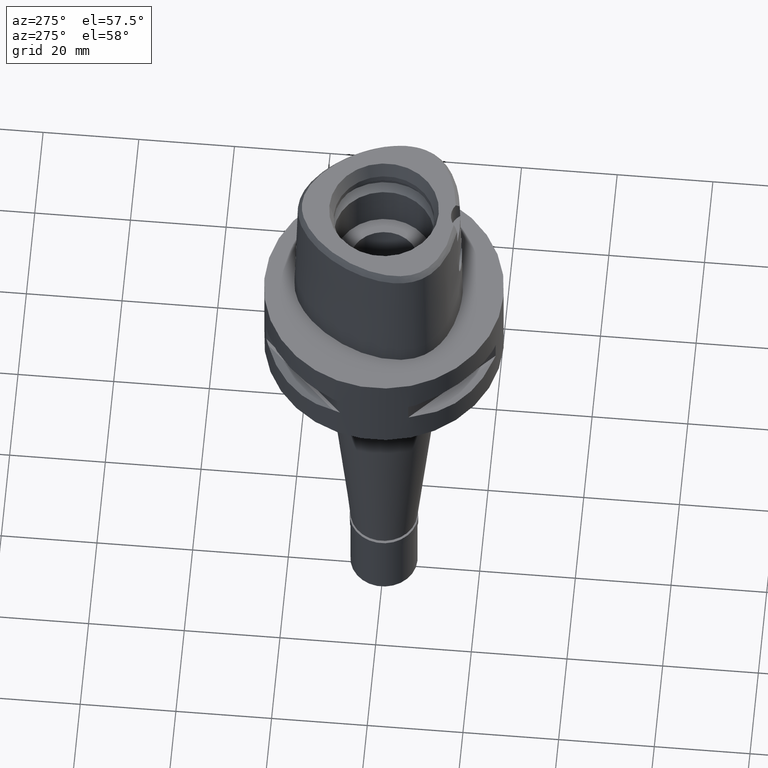
[diagram: clean part render]
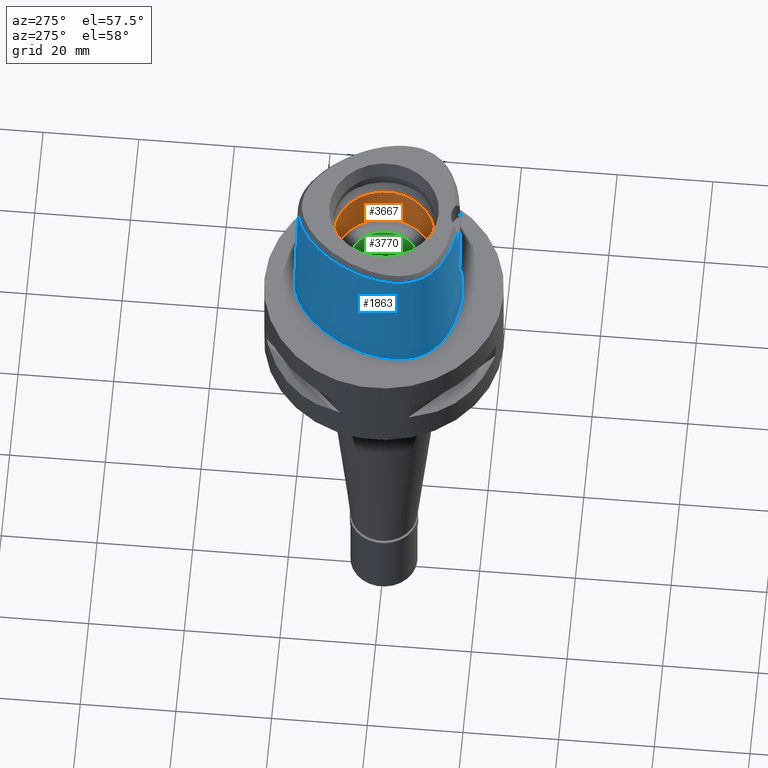
[diagram: same view with three faces highlighted in distinct colors, each labeled with its STEP entity id]
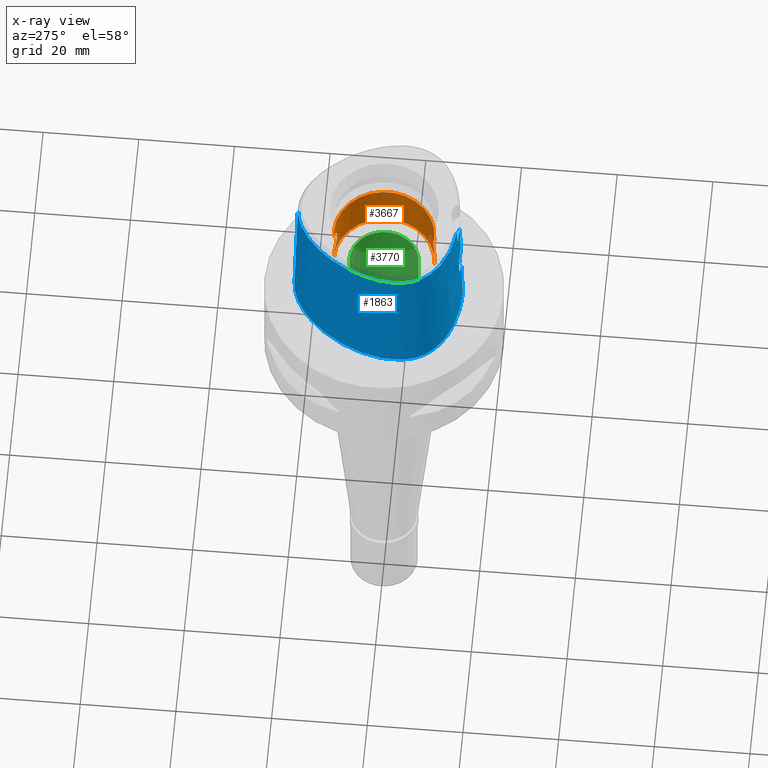
[diagram: x-ray of the same camera — body ghosted, the three highlighted faces saturated]
A machine part, auxiliary view with three faces highlighted in distinct colors.
The next image is the same camera in x-ray (body ghosted, the three faces saturated) — at least one of them is partly hidden behind the body in this view.
Their STEP definitions:

[orange] entity #3667 — the highlighted cylindrical surface (partial cylindrical patch) has radius 10.5 mm, axis along (0, 0, -1).
#3 = CARTESIAN_POINT ( 'NONE',  ( 2.844275244107489442, -10.10750057597628526, 12.89874350943842174 ) ) ;
#14 = CARTESIAN_POINT ( 'NONE',  ( 2.512921878283643995, 10.19492176240920145, 15.72972677548092157 ) ) ;
#27 = CARTESIAN_POINT ( 'NONE',  ( 2.772319110776069184, -10.12750285136528561, 15.27174168419082534 ) ) ;
#51 = CARTESIAN_POINT ( 'NONE',  ( 1.756949084913084214, -10.35196908568974550, 11.50675482054573884 ) ) ;
#60 = VECTOR ( 'NONE', #2387, 1000.000000000000000 ) ;
#77 = CARTESIAN_POINT ( 'NONE',  ( 2.787064406588477983, -10.12345627881758148, 15.23924730534490024 ) ) ;
#159 = CARTESIAN_POINT ( 'NONE',  ( 2.528963694661670480, 10.19087517456368985, 12.29505239684755402 ) ) ;
#176 = CARTESIAN_POINT ( 'NONE',  ( 1.323968914910981010, 10.41650450081951540, 11.25053714606462307 ) ) ;
#199 = CARTESIAN_POINT ( 'NONE',  ( 2.648850664410045130, 10.16055922834963710, 12.48463899832692192 ) ) ;
#229 = CARTESIAN_POINT ( 'NONE',  ( 1.658067691841937918, 10.36825398497860462, 11.44004753343680214 ) ) ;
#238 = CARTESIAN_POINT ( 'NONE',  ( 2.249032427112489074, -10.25682621327920252, 16.06503230505761337 ) ) ;
#251 = CARTESIAN_POINT ( 'NONE',  ( 2.249117324493820735, 10.25680736615528588, 11.93506107646698311 ) ) ;
#259 = DIRECTION ( 'NONE',  ( 0.0000000000000000000, 0.0000000000000000000, -1.000000000000000000 ) ) ;
#282 = CARTESIAN_POINT ( 'NONE',  ( 1.707656667431065589, 10.36021860589374732, 16.52713543650936856 ) ) ;
#311 = CARTESIAN_POINT ( 'NONE',  ( 1.989303514585730737, 10.31002034776191856, 16.31419092035543272 ) ) ;
#318 = CARTESIAN_POINT ( 'NONE',  ( 1.740926287971506836, -10.35483511188262185, 16.50537809591427063 ) ) ;
#328 = CARTESIAN_POINT ( 'NONE',  ( 2.599143935894969726, 10.17324269225338718, 15.59630357580038051 ) ) ;
#338 = CARTESIAN_POINT ( 'NONE',  ( 3.013860203605535748, -10.05850444702513258, 14.47860310561554975 ) ) ;
#363 = CARTESIAN_POINT ( 'NONE',  ( 2.556119287377531357, -10.18410899365403388, 12.33603918460904758 ) ) ;
#374 = VERTEX_POINT ( 'NONE', #4534 ) ;
#391 = CARTESIAN_POINT ( 'NONE',  ( 2.912211511062697156, -10.08825325305797627, 13.09221294453771911 ) ) ;
#414 = CARTESIAN_POINT ( 'NONE',  ( 2.658794028149571442, -10.15786896108676451, 12.50467189553370240 ) ) ;
#441 = CARTESIAN_POINT ( 'NONE',  ( 2.829361163358425024, -10.11167872823986613, 12.86099082516203751 ) ) ;
#461 = CYLINDRICAL_SURFACE ( 'NONE', #2827, 10.50000000000000000 ) ;
#464 = CARTESIAN_POINT ( 'NONE',  ( 1.188897683297293284, -10.43236352860217053, 11.19123487431793151 ) ) ;
#471 = CARTESIAN_POINT ( 'NONE',  ( 0.0000000000000000000, 1.483670516304999789E-14, 20.40089161527999906 ) ) ;
#483 = DIRECTION ( 'NONE',  ( 0.0000000000000000000, 0.0000000000000000000, -1.000000000000000000 ) ) ;
#567 = EDGE_CURVE ( 'NONE', #2492, #4749, #1301, .T. ) ;
#570 = CARTESIAN_POINT ( 'NONE',  ( 1.501050544116798946, 10.39221389090072911, 11.34443176979017487 ) ) ;
#598 = CARTESIAN_POINT ( 'NONE',  ( 0.6689123132078689249, 10.47883578122621451, 11.02262632832667499 ) ) ;
#599 = CARTESIAN_POINT ( 'NONE',  ( 0.7784719832900152126, -10.47826499193357641, 11.02113842329111115 ) ) ;
#604 = EDGE_LOOP ( 'NONE', ( #2983, #952, #4243, #3569, #2373, #1336, #1446, #1322 ) ) ;
#607 = CARTESIAN_POINT ( 'NONE',  ( 2.125820991384376413, -10.28255521734048017, 16.18715138478157201 ) ) ;
#622 = CARTESIAN_POINT ( 'NONE',  ( 1.741009038481570181, 10.35482127465988000, 11.49467963125762715 ) ) ;
#648 = CARTESIAN_POINT ( 'NONE',  ( 2.501007571785318184, 10.19780901880324642, 12.25415054793910130 ) ) ;
#657 = CARTESIAN_POINT ( 'NONE',  ( 1.141732985535315326, -10.43768196579646279, 16.82826384510322626 ) ) ;
#670 = CARTESIAN_POINT ( 'NONE',  ( 2.787138828272393454, 10.12343660367300480, 12.76091999483743678 ) ) ;
#681 = CARTESIAN_POINT ( 'NONE',  ( 1.641097190152380758, -10.37096263372367666, 16.57091677865613732 ) ) ;
#692 = CARTESIAN_POINT ( 'NONE',  ( 2.751833750798593492, 10.13317589947681796, 15.31899371389366848 ) ) ;
#712 = CARTESIAN_POINT ( 'NONE',  ( 2.791161911908845550, 10.12234823481605162, 15.23288588802282817 ) ) ;
#724 = CARTESIAN_POINT ( 'NONE',  ( 2.422046306151929951, -10.21701399604496885, 15.85438239164646923 ) ) ;
#734 = CARTESIAN_POINT ( 'NONE',  ( 2.561573521328561753, 10.18274035299596036, 15.65557258541091734 ) ) ;
#750 = CARTESIAN_POINT ( 'NONE',  ( 2.719700136812867708, -10.14177672420369447, 15.38140804886839419 ) ) ;
#778 = CARTESIAN_POINT ( 'NONE',  ( 2.342968627457624908, -10.23558722573572766, 12.04475145765551147 ) ) ;
#798 = CARTESIAN_POINT ( 'NONE',  ( 1.386948097363750909, -10.40799934146660455, 11.28311535730615667 ) ) ;
#911 = CARTESIAN_POINT ( 'NONE',  ( 0.9113412802436261506, 10.46031708979915820, 11.08889911175401188 ) ) ;
#934 = CARTESIAN_POINT ( 'NONE',  ( 0.3787274524813821763, 10.49470894530655407, 10.96720324273529279 ) ) ;
#952 = ORIENTED_EDGE ( 'NONE', *, *, #4203, .T. ) ;
#955 = CARTESIAN_POINT ( 'NONE',  ( 1.128390770668342924, 10.43913220284298227, 11.16638025997063011 ) ) ;
#967 = CARTESIAN_POINT ( 'NONE',  ( 2.036590477875869887, -10.30056457203203024, 16.27059992390260490 ) ) ;
#997 = CARTESIAN_POINT ( 'NONE',  ( 1.128329994157148075, -10.43913894641584861, 16.83364393760651723 ) ) ;
#1032 = CARTESIAN_POINT ( 'NONE',  ( 1.276100751046590487, 10.42207867787087139, 16.77031792547582612 ) ) ;
#1042 = CARTESIAN_POINT ( 'NONE',  ( 1.323896765677277765, -10.41651376008978325, 16.74949734448019356 ) ) ;
#1053 = CARTESIAN_POINT ( 'NONE',  ( 1.188834861596867132, 10.43237100270110673, 16.80879171233381797 ) ) ;
#1072 = CARTESIAN_POINT ( 'NONE',  ( 1.756864159878566367, 10.35198327953328956, 16.49330503809262538 ) ) ;
#1083 = CARTESIAN_POINT ( 'NONE',  ( 2.500919610565563556, -10.19783081804284031, 15.74597536509110185 ) ) ;
#1094 = CARTESIAN_POINT ( 'NONE',  ( 1.521598319329239724, 10.38951171458037770, 16.64529504379291680 ) ) ;
#1105 = CARTESIAN_POINT ( 'NONE',  ( 1.729899245027333832, -10.35652539926146964, 11.48800997733543561 ) ) ;
#1118 = CARTESIAN_POINT ( 'NONE',  ( 2.912166724520529382, 10.08826516473200563, 14.90793074598242995 ) ) ;
#1134 = CARTESIAN_POINT ( 'NONE',  ( 1.870655397227993788, -10.33198768520815669, 11.59049268858693438 ) ) ;
#1163 = CARTESIAN_POINT ( 'NONE',  ( 1.707003811296404328, -10.36032678721340439, 11.47242214210652378 ) ) ;
#1183 = CARTESIAN_POINT ( 'NONE',  ( 3.050005080898542165, -10.04725334564248307, 13.81500911718046076 ) ) ;
#1230 = CARTESIAN_POINT ( 'NONE',  ( 1.276169219736535076, -10.42207001621971330, 11.22971359884679643 ) ) ;
#1268 = CARTESIAN_POINT ( 'NONE',  ( 2.594875644332431008, 10.17449012125675267, 12.39333396167546297 ) ) ;
#1294 = CARTESIAN_POINT ( 'NONE',  ( 2.525703912823202391, 10.19168522689460943, 12.29022032174983003 ) ) ;
#1301 = B_SPLINE_CURVE_WITH_KNOTS ( 'NONE', 3,
 ( #4343, #2484, #2507, #1690, #4747, #4285, #3242, #1354, #1764, #997, #657, #3264, #1042, #4730, #1410, #3166, #3998, #681, #2152, #4654, #3636, #318, #1788, #1432, #2789, #967, #2430, #3922, #607, #3555, #238, #1714, #724, #1909, #4773, #1083, #2572, #4507, #1480, #4065, #2223, #3389, #3705, #750, #4135, #27, #77, #2250, #2919, #1556, #3312, #3020, #338, #3659, #1808, #4094, #1183, #3729, #2642, #2171, #391, #2549, #4043, #3, #1860, #441, #3285, #1455, #3336, #414, #1884, #4412, #2192, #3682, #363, #2269, #3362, #2598, #2943, #778, #1507, #2966, #4458, #1134, #1833, #4434, #51, #1105, #1531, #2994, #4485, #1163, #2623, #4115, #798, #3751, #1230, #3413, #3201, #464, #1705, #599, #4666, #3178 ),
 .UNSPECIFIED., .F., .F.,
 ( 4, 2, 2, 1, 1, 2, 2, 2, 2, 1, 1, 2, 2, 2, 2, 1, 2, 2, 2, 2, 1, 1, 1, 2, 2, 2, 2, 1, 2, 2, 2, 2, 2, 2, 2, 1, 1, 2, 2, 2, 2, 1, 1, 1, 2, 2, 2, 2, 2, 2, 1, 1, 1, 2, 2, 2, 2, 1, 2, 2, 4 ),
 ( 0.0000000000000000000, 0.06249999999992951472, 0.09374999999989434840, 0.1093749999998765987, 0.1171874999998677308, 0.1210937499998632622, 0.1249999999998588074, 0.1562499999998203382, 0.1718749999998008260, 0.1796874999997910560, 0.1835937499997860878, 0.1855468749997836175, 0.1874999999997811473, 0.2187499999997441213, 0.2343749999997252753, 0.2421874999997158384, 0.2460937499997114253, 0.2499999999997069844, 0.2812499999996705968, 0.2968749999996523337, 0.3046874999996431743, 0.3085937499996391775, 0.3105468749996372901, 0.3115234374996369571, 0.3124999999996366240, 0.3437499999996477262, 0.3593749999996534994, 0.3671874999996566080, 0.3710937499996579403, 0.3749999999996592170, 0.4374999999996792566, 0.4687499999996892486, 0.4999999999996992406, 0.5624999999997192246, 0.5937499999997293276, 0.6093749999997343236, 0.6171874999997368771, 0.6210937499997380984, 0.6249999999997393196, 0.6562499999997486455, 0.6718749999997531974, 0.6796874999997555289, 0.6835937499997566391, 0.6855468749997573052, 0.6865234374997576383, 0.6874999999997579714, 0.7187499999997785105, 0.7499999999997989386, 0.7812499999998194777, 0.7968749999998296918, 0.8046874999998347988, 0.8085937499998374633, 0.8105468749998386846, 0.8115234374998394618, 0.8124999999998401279, 0.8437499999998666622, 0.8593749999998798739, 0.8671874999998865352, 0.8710937499998897549, 0.8749999999998930855, 1.000000000000000000 ),
 .UNSPECIFIED. ) ;
#1322 = ORIENTED_EDGE ( 'NONE', *, *, #2360, .F. ) ;
#1323 = CARTESIAN_POINT ( 'NONE',  ( 1.104370182683264812, 10.44169505746011595, 11.15693245560120950 ) ) ;
#1336 = ORIENTED_EDGE ( 'NONE', *, *, #1482, .T. ) ;
#1338 = EDGE_CURVE ( 'NONE', #4151, #2421, #2720, .T. ) ;
#1345 = CARTESIAN_POINT ( 'NONE',  ( 1.456516304988193289, 10.39853391455694798, 11.31978635711464598 ) ) ;
#1354 = CARTESIAN_POINT ( 'NONE',  ( 1.068247455599155682, -10.44548337543123928, 16.85701016503113792 ) ) ;
#1373 = CARTESIAN_POINT ( 'NONE',  ( 2.449312465963388252, 10.21045377916495234, 12.18203659319498477 ) ) ;
#1398 = CARTESIAN_POINT ( 'NONE',  ( 2.556057301364237144, 10.18412497569450004, 15.66405603269874547 ) ) ;
#1410 = CARTESIAN_POINT ( 'NONE',  ( 1.500968808066890148, -10.39222569595904844, 16.65561435862955619 ) ) ;
#1421 = CARTESIAN_POINT ( 'NONE',  ( 3.032693110682604498, 10.05288456797676133, 13.61931366745536032 ) ) ;
#1424 = VERTEX_POINT ( 'NONE', #2230 ) ;
#1432 = CARTESIAN_POINT ( 'NONE',  ( 1.930388096063102799, -10.32098858174314415, 16.36191406334469889 ) ) ;
#1442 = CARTESIAN_POINT ( 'NONE',  ( 3.033106798430447615, 10.05272106261936926, 14.37597179215571508 ) ) ;
#1446 = ORIENTED_EDGE ( 'NONE', *, *, #2244, .T. ) ;
#1455 = CARTESIAN_POINT ( 'NONE',  ( 2.751884679008838042, -10.13316287932903847, 12.68111214655986352 ) ) ;
#1467 = CARTESIAN_POINT ( 'NONE',  ( 2.829305774438843457, 10.11169290979799484, 15.13914673285195533 ) ) ;
#1480 = CARTESIAN_POINT ( 'NONE',  ( 2.528868665928027504, -10.19089896813328266, 15.70508855078493760 ) ) ;
#1482 = EDGE_CURVE ( 'NONE', #1424, #2434, #3443, .T. ) ;
#1487 = DIRECTION ( 'NONE',  ( 0.0000000000000000000, 0.0000000000000000000, -1.000000000000000000 ) ) ;
#1491 = EDGE_CURVE ( 'NONE', #1424, #2492, #3418, .T. ) ;
#1493 = CARTESIAN_POINT ( 'NONE',  ( 1.833369269573338123, 10.33867676254427437, 16.43784289496951700 ) ) ;
#1507 = CARTESIAN_POINT ( 'NONE',  ( 2.266144854621401361, -10.25299388352025787, 11.95426803284425610 ) ) ;
#1531 = CARTESIAN_POINT ( 'NONE',  ( 1.716860572636586868, -10.35869652779481065, 11.47910248954204704 ) ) ;
#1544 = CARTESIAN_POINT ( 'NONE',  ( 0.0000000000000000000, -10.50000000000000000, 10.00000000000000000 ) ) ;
#1556 = CARTESIAN_POINT ( 'NONE',  ( 2.813871346667223605, -10.11602783675715500, 15.17677601548344590 ) ) ;
#1593 = AXIS2_PLACEMENT_3D ( 'NONE', #471, #1943, #3713 ) ;
#1636 = CARTESIAN_POINT ( 'NONE',  ( 2.531111734320958817, 10.19034130873208532, 12.29824294131188545 ) ) ;
#1649 = CARTESIAN_POINT ( 'NONE',  ( 0.0000000000000000000, 10.50000000000000000, 10.94999999999999929 ) ) ;
#1655 = CARTESIAN_POINT ( 'NONE',  ( 1.676810051163809989, 10.36523773137637860, 11.45228955112465208 ) ) ;
#1678 = CARTESIAN_POINT ( 'NONE',  ( 2.719777489731567410, 10.14175641246916015, 12.61874419158370664 ) ) ;
#1690 = CARTESIAN_POINT ( 'NONE',  ( 0.6688774812611679721, -10.47883812602031561, 16.97738131204618384 ) ) ;
#1704 = CARTESIAN_POINT ( 'NONE',  ( 1.669325064467333863, 10.36644722215274506, 11.44737411065894861 ) ) ;
#1705 = CARTESIAN_POINT ( 'NONE',  ( 1.179453071966998223, -10.43343653779657565, 11.18724984501825048 ) ) ;
#1714 = CARTESIAN_POINT ( 'NONE',  ( 2.328117555959193563, -10.23900546424033919, 15.97295162130381918 ) ) ;
#1754 = CARTESIAN_POINT ( 'NONE',  ( 2.574295021999103206, 10.17953738072038128, 15.63579337298669536 ) ) ;
#1764 = CARTESIAN_POINT ( 'NONE',  ( 1.104310761165587129, -10.44170151709308136, 16.84309062177460348 ) ) ;
#1777 = CARTESIAN_POINT ( 'NONE',  ( 2.619440559707270744, 10.16803796971161056, 15.56259531553788023 ) ) ;
#1788 = CARTESIAN_POINT ( 'NONE',  ( 1.811842809112848895, -10.34269679768338257, 16.45557948583557462 ) ) ;
#1797 = CARTESIAN_POINT ( 'NONE',  ( 1.729811899855771884, 10.35653978206846304, 16.51205017565036215 ) ) ;
#1808 = CARTESIAN_POINT ( 'NONE',  ( 3.045675422398149923, -10.04867475032002666, 14.18894089495660360 ) ) ;
#1821 = CARTESIAN_POINT ( 'NONE',  ( 2.549768802787570010, 10.18570099338988832, 15.67367355964339026 ) ) ;
#1833 = CARTESIAN_POINT ( 'NONE',  ( 1.833449799978573935, -10.33866271675340975, 11.56221769112445052 ) ) ;
#1847 = CARTESIAN_POINT ( 'NONE',  ( 2.834772115109752910, 10.11016348655465080, 15.12549303329494776 ) ) ;
#1860 = CARTESIAN_POINT ( 'NONE',  ( 2.834826346757756799, -10.11014960679703911, 12.87464356492052531 ) ) ;
#1884 = CARTESIAN_POINT ( 'NONE',  ( 2.619496371660233969, -10.16802340642455604, 12.43749825123569508 ) ) ;
#1909 = CARTESIAN_POINT ( 'NONE',  ( 2.449231481420490297, -10.21047344920699906, 15.81807234377296112 ) ) ;
#1933 = DIRECTION ( 'NONE',  ( 0.0000000000000000000, -1.000000000000000000, 0.0000000000000000000 ) ) ;
#1943 = DIRECTION ( 'NONE',  ( 0.0000000000000000000, 0.0000000000000000000, 1.000000000000000000 ) ) ;
#1946 = CARTESIAN_POINT ( 'NONE',  ( 0.0000000000000000000, 10.50000000000000000, 20.40089161527999906 ) ) ;
#1964 = CARTESIAN_POINT ( 'NONE',  ( 0.0000000000000000000, 10.50000000000000000, 10.00000000000000000 ) ) ;
#1974 = VECTOR ( 'NONE', #1487, 1000.000000000000000 ) ;
#1996 = CARTESIAN_POINT ( 'NONE',  ( 0.0000000000000000000, 1.610410540878999754E-14, 31.50000000000000000 ) ) ;
#2038 = CARTESIAN_POINT ( 'NONE',  ( 1.811923068219099653, 10.34268283243203790, 11.54447952458163051 ) ) ;
#2071 = CIRCLE ( 'NONE', #4552, 10.50000000000000000 ) ;
#2095 = CARTESIAN_POINT ( 'NONE',  ( 2.069615633376302277, 10.29402508846599318, 11.75927893723172524 ) ) ;
#2119 = CARTESIAN_POINT ( 'NONE',  ( 2.954882638284636709, 10.07596013546080904, 14.76248388676967416 ) ) ;
#2140 = CARTESIAN_POINT ( 'NONE',  ( 2.813945975878913153, 10.11600799454591559, 12.82340245404689050 ) ) ;
#2147 = DIRECTION ( 'NONE',  ( 0.0000000000000000000, 0.0000000000000000000, -1.000000000000000000 ) ) ;
#2152 = CARTESIAN_POINT ( 'NONE',  ( 1.657978121026951523, -10.36826822009252247, 16.56001047764421941 ) ) ;
#2164 = CARTESIAN_POINT ( 'NONE',  ( 0.7784327284102964262, 10.47826738559791693, 16.97886791811174234 ) ) ;
#2171 = CARTESIAN_POINT ( 'NONE',  ( 2.954919872153779714, -10.07594969640612881, 13.23766054668898917 ) ) ;
#2181 = CARTESIAN_POINT ( 'NONE',  ( 2.658740901824827141, 10.15788282424896138, 15.49542257602510986 ) ) ;
#2192 = CARTESIAN_POINT ( 'NONE',  ( 2.574354970550871258, -10.17952184411067584, 12.36430098328962046 ) ) ;
#2217 = CARTESIAN_POINT ( 'NONE',  ( 0.0000000000000000000, 10.50000000000000000, 20.40089161527999906 ) ) ;
#2223 = CARTESIAN_POINT ( 'NONE',  ( 2.531198843314137026, -10.19031986401626710, 15.70162992011681347 ) ) ;
#2230 = CARTESIAN_POINT ( 'NONE',  ( 0.0000000000000000000, -10.50000000000000000, 20.40089161527999906 ) ) ;
#2244 = EDGE_CURVE ( 'NONE', #2434, #374, #2546, .T. ) ;
#2250 = CARTESIAN_POINT ( 'NONE',  ( 2.800979720946436213, -10.11960603068971132, 15.20712345414295541 ) ) ;
#2269 = CARTESIAN_POINT ( 'NONE',  ( 2.552427928396863166, -10.18503463177848545, 12.33038235610675137 ) ) ;
#2360 = EDGE_CURVE ( 'NONE', #4151, #374, #2509, .T. ) ;
#2373 = ORIENTED_EDGE ( 'NONE', *, *, #1491, .F. ) ;
#2377 = CARTESIAN_POINT ( 'NONE',  ( 0.1867762932004476961, 10.50000000000000711, 10.94999999999999929 ) ) ;
#2387 = DIRECTION ( 'NONE',  ( 0.0000000000000000000, 0.0000000000000000000, -1.000000000000000000 ) ) ;
#2417 = CARTESIAN_POINT ( 'NONE',  ( 1.141794485349677313, 10.43767506429851011, 11.17176097919053213 ) ) ;
#2421 = VERTEX_POINT ( 'NONE', #1964 ) ;
#2430 = CARTESIAN_POINT ( 'NONE',  ( 2.069523711590793624, -10.29404353534653893, 16.24080587214390192 ) ) ;
#2434 = VERTEX_POINT ( 'NONE', #1946 ) ;
#2484 = CARTESIAN_POINT ( 'NONE',  ( 0.1867674398480352604, -10.49999999999999467, 17.04999999999999005 ) ) ;
#2492 = VERTEX_POINT ( 'NONE', #3401 ) ;
#2496 = CARTESIAN_POINT ( 'NONE',  ( 3.049999831026676933, 10.04726935032736890, 13.81489378006643243 ) ) ;
#2507 = CARTESIAN_POINT ( 'NONE',  ( 0.3787085517134362589, -10.49470953150507491, 17.03279839123862516 ) ) ;
#2509 = B_SPLINE_CURVE_WITH_KNOTS ( 'NONE', 3,
 ( #2729, #2377, #934, #598, #3152, #911, #3863, #2780, #1323, #955, #2417, #3498, #176, #1345, #570, #3542, #4593, #2830, #229, #1704, #1655, #622, #2038, #3125, #4331, #3518, #2095, #4665, #2803, #3571, #251, #4301, #3199, #1373, #3961, #648, #3474, #1294, #159, #1636, #3102, #1268, #199, #1678, #3273, #3669, #670, #4756, #2882, #2140, #3623, #3299, #1421, #2496, #4078, #1442, #2558, #2119, #1118, #4715, #4785, #4377, #1847, #1467, #712, #692, #4444, #2181, #1777, #328, #1754, #734, #1398, #4739, #1821, #14, #3326, #4400, #4034, #3594, #311, #2933, #1493, #2953, #1072, #1797, #4052, #4424, #282, #2583, #3228, #1094, #3254, #2859, #1032, #2517, #4356, #1053, #4008, #2164, #3984, #3648 ),
 .UNSPECIFIED., .F., .F.,
 ( 4, 2, 2, 1, 1, 2, 2, 2, 2, 1, 1, 2, 2, 2, 2, 1, 2, 2, 2, 2, 1, 1, 1, 2, 2, 2, 2, 1, 2, 2, 2, 2, 2, 2, 1, 1, 2, 2, 2, 2, 1, 1, 1, 2, 2, 2, 2, 2, 2, 1, 1, 1, 2, 2, 2, 2, 1, 2, 2, 4 ),
 ( 0.0000000000000000000, 0.06250000000001879052, 0.09375000000002815803, 0.1093750000000328210, 0.1171875000000351247, 0.1210937500000363876, 0.1250000000000376643, 0.1562500000000484335, 0.1718750000000537903, 0.1796875000000564548, 0.1835937500000577594, 0.1855468750000582590, 0.1875000000000587586, 0.2187500000000685285, 0.2343750000000733302, 0.2421875000000758282, 0.2460937500000770772, 0.2500000000000782707, 0.2812500000000884848, 0.2968750000000937583, 0.3046875000000962563, 0.3085937500000974776, 0.3105468750000977551, 0.3115234375000978662, 0.3125000000000980327, 0.3437500000000984768, 0.3593750000000989209, 0.3671875000000989764, 0.3710937500000989209, 0.3750000000000988654, 0.4375000000001045275, 0.5000000000001102451, 0.5625000000001159073, 0.5937500000001185718, 0.6093750000001201261, 0.6171875000001209033, 0.6210937500001211253, 0.6250000000001212364, 0.6562500000001231237, 0.6718750000001240119, 0.6796875000001247891, 0.6835937500001252332, 0.6855468750001258993, 0.6865234375001257883, 0.6875000000001256772, 0.7187500000001195710, 0.7500000000001135758, 0.7812500000001075806, 0.7968750000001044720, 0.8046875000001033618, 0.8085937500001029177, 0.8105468750001025846, 0.8115234375001021405, 0.8125000000001015854, 0.8437500000000834888, 0.8593750000000743849, 0.8671875000000698330, 0.8710937500000678346, 0.8750000000000657252, 1.000000000000000000 ),
 .UNSPECIFIED. ) ;
#2517 = CARTESIAN_POINT ( 'NONE',  ( 1.243173267947210059, 10.42607234195740240, 16.78532104135614844 ) ) ;
#2546 = LINE ( 'NONE', #2217, #3373 ) ;
#2549 = CARTESIAN_POINT ( 'NONE',  ( 2.888899562011218780, -10.09491797827999449, 13.01950824191362699 ) ) ;
#2558 = CARTESIAN_POINT ( 'NONE',  ( 2.978136503178874683, 10.06912454526312040, 14.66547041874823698 ) ) ;
#2572 = CARTESIAN_POINT ( 'NONE',  ( 2.517739876222782058, -10.19366303897557202, 15.72151130424244414 ) ) ;
#2583 = CARTESIAN_POINT ( 'NONE',  ( 1.706913597197094123, 10.36034146067490092, 16.52763878149520949 ) ) ;
#2598 = CARTESIAN_POINT ( 'NONE',  ( 2.512982091376483318, -10.19490641663851349, 12.27036038364443371 ) ) ;
#2623 = CARTESIAN_POINT ( 'NONE',  ( 1.612833193455769809, -10.37582084644413172, 11.40897843857475102 ) ) ;
#2642 = CARTESIAN_POINT ( 'NONE',  ( 2.978168158509828967, -10.06911518369448721, 13.33467206363919111 ) ) ;
#2720 = LINE ( 'NONE', #1649, #4689 ) ;
#2729 = CARTESIAN_POINT ( 'NONE',  ( 0.0000000000000000000, 10.50000000000000000, 10.94999999999999929 ) ) ;
#2780 = CARTESIAN_POINT ( 'NONE',  ( 1.068304840380863485, 10.44547733483863894, 11.14301126591829316 ) ) ;
#2789 = CARTESIAN_POINT ( 'NONE',  ( 1.971913834745691041, -10.31316905232283787, 16.32752121028857673 ) ) ;
#2798 = DIRECTION ( 'NONE',  ( 0.0000000000000000000, 0.0000000000000000000, -1.000000000000000000 ) ) ;
#2803 = CARTESIAN_POINT ( 'NONE',  ( 2.125917809817211790, 10.28253520498369511, 11.81294270820584735 ) ) ;
#2827 = AXIS2_PLACEMENT_3D ( 'NONE', #1996, #483, #1933 ) ;
#2830 = CARTESIAN_POINT ( 'NONE',  ( 1.641185955448284162, 10.37094866851886721, 11.42913987663042796 ) ) ;
#2859 = CARTESIAN_POINT ( 'NONE',  ( 1.342293398414086125, 10.41383903482682527, 16.73918355951393622 ) ) ;
#2882 = CARTESIAN_POINT ( 'NONE',  ( 2.810150186842709896, 10.11706320198503128, 12.81438185252698680 ) ) ;
#2919 = CARTESIAN_POINT ( 'NONE',  ( 2.810076276443413068, -10.11708282625331634, 15.18579330039645470 ) ) ;
#2933 = CARTESIAN_POINT ( 'NONE',  ( 1.870575969054834475, 10.33200182690538682, 16.40956895859907760 ) ) ;
#2943 = CARTESIAN_POINT ( 'NONE',  ( 2.466005327969370775, -10.20661944846525593, 12.20241368106630375 ) ) ;
#2953 = CARTESIAN_POINT ( 'NONE',  ( 1.781680532372264425, 10.34771082988919133, 16.47559481647503077 ) ) ;
#2966 = CARTESIAN_POINT ( 'NONE',  ( 2.078135821199520006, -10.29274126334308193, 11.76353330178664436 ) ) ;
#2983 = ORIENTED_EDGE ( 'NONE', *, *, #1338, .T. ) ;
#2994 = CARTESIAN_POINT ( 'NONE',  ( 1.711377921381092904, -10.35960407682640927, 11.47538311467915051 ) ) ;
#3020 = CARTESIAN_POINT ( 'NONE',  ( 2.957410717728170990, -10.07534498681893709, 14.77193191733126199 ) ) ;
#3075 = EDGE_CURVE ( 'NONE', #4749, #3814, #4602, .T. ) ;
#3102 = CARTESIAN_POINT ( 'NONE',  ( 2.531295471044666012, 10.19029565195985398, 12.29851382421077943 ) ) ;
#3125 = CARTESIAN_POINT ( 'NONE',  ( 1.930471181807694503, 10.32097309170120170, 11.63815379018958218 ) ) ;
#3152 = CARTESIAN_POINT ( 'NONE',  ( 0.7660006551190400303, 10.47222196285940932, 11.04602839572754647 ) ) ;
#3166 = CARTESIAN_POINT ( 'NONE',  ( 1.568097863131003189, -10.38225193758933784, 16.61615038516162102 ) ) ;
#3178 = CARTESIAN_POINT ( 'NONE',  ( 0.0000000000000000000, -10.50000000000000000, 10.94999999999999929 ) ) ;
#3199 = CARTESIAN_POINT ( 'NONE',  ( 2.422125717785657883, 10.21699491830676543, 12.14572125793936053 ) ) ;
#3201 = CARTESIAN_POINT ( 'NONE',  ( 1.210594587562798585, -10.42986900100492065, 11.20051790911941758 ) ) ;
#3228 = CARTESIAN_POINT ( 'NONE',  ( 1.612746601570586247, 10.37583416523136925, 16.59107516802520266 ) ) ;
#3242 = CARTESIAN_POINT ( 'NONE',  ( 0.9838845370238309407, -10.45387372780990809, 16.88774268329863304 ) ) ;
#3254 = CARTESIAN_POINT ( 'NONE',  ( 1.386873018863575613, 10.40800951963617571, 16.71692290248977386 ) ) ;
#3264 = CARTESIAN_POINT ( 'NONE',  ( 1.236957856289733648, -10.42717367617683877, 16.78940726311529374 ) ) ;
#3273 = CARTESIAN_POINT ( 'NONE',  ( 2.741748741093550379, 10.13583772775570324, 12.66297536229606280 ) ) ;
#3285 = CARTESIAN_POINT ( 'NONE',  ( 2.791214425727966741, -10.12233497789926773, 12.76723173827698155 ) ) ;
#3299 = CARTESIAN_POINT ( 'NONE',  ( 2.957454687630677093, 10.07533207755579063, 13.22824138619685641 ) ) ;
#3312 = CARTESIAN_POINT ( 'NONE',  ( 2.899433381332750859, -10.09218068781909317, 14.96967267542248159 ) ) ;
#3326 = CARTESIAN_POINT ( 'NONE',  ( 2.465945275125391856, 10.20663448907766835, 15.79766872939286593 ) ) ;
#3336 = CARTESIAN_POINT ( 'NONE',  ( 2.683269133176498844, -10.15143825073914741, 12.54912944303389821 ) ) ;
#3362 = CARTESIAN_POINT ( 'NONE',  ( 2.549831744840582726, -10.18568479865094112, 12.32642233344095573 ) ) ;
#3373 = VECTOR ( 'NONE', #2147, 1000.000000000000000 ) ;
#3389 = CARTESIAN_POINT ( 'NONE',  ( 2.594787844664584675, -10.17451272417047825, 15.60680824590878757 ) ) ;
#3401 = CARTESIAN_POINT ( 'NONE',  ( 0.0000000000000000000, -10.50000000000000000, 17.05000000000000071 ) ) ;
#3413 = CARTESIAN_POINT ( 'NONE',  ( 1.243239666746700278, -10.42606412921035286, 11.21470856859099108 ) ) ;
#3418 = LINE ( 'NONE', #4122, #1974 ) ;
#3443 = CIRCLE ( 'NONE', #1593, 10.50000000000000000 ) ;
#3474 = CARTESIAN_POINT ( 'NONE',  ( 2.517831763548236790, 10.19364012408467701, 12.27862306712655460 ) ) ;
#3498 = CARTESIAN_POINT ( 'NONE',  ( 1.237025000621027937, 10.42716557871980498, 11.21062230837929263 ) ) ;
#3518 = CARTESIAN_POINT ( 'NONE',  ( 2.036679914412427017, 10.30054692283279216, 11.72948026183113690 ) ) ;
#3542 = CARTESIAN_POINT ( 'NONE',  ( 1.568183029890100944, 10.38223911306336333, 11.38390064693865789 ) ) ;
#3555 = CARTESIAN_POINT ( 'NONE',  ( 2.136100343734112617, -10.28042929747009815, 16.17712836185316760 ) ) ;
#3569 = ORIENTED_EDGE ( 'NONE', *, *, #567, .F. ) ;
#3571 = CARTESIAN_POINT ( 'NONE',  ( 2.136201039484774800, 10.28040836939871383, 11.82297045442675554 ) ) ;
#3577 = CARTESIAN_POINT ( 'NONE',  ( 0.0000000000000000000, 1.610410540878999754E-14, 10.00000000000000000 ) ) ;
#3594 = CARTESIAN_POINT ( 'NONE',  ( 2.078056133906709402, 10.29275713203050202, 16.23654017637923275 ) ) ;
#3623 = CARTESIAN_POINT ( 'NONE',  ( 2.899493436784370992, 10.09216444762106768, 13.03050769528759822 ) ) ;
#3636 = CARTESIAN_POINT ( 'NONE',  ( 1.676718924548066481, -10.36525237659834708, 16.54777042361276784 ) ) ;
#3648 = CARTESIAN_POINT ( 'NONE',  ( 0.0000000000000000000, 10.50000000000000000, 17.05000000000000071 ) ) ;
#3659 = CARTESIAN_POINT ( 'NONE',  ( 3.027607236360491338, -10.05429310237827423, 14.38135529722916139 ) ) ;
#3667 = ADVANCED_FACE ( 'NONE', ( #3800 ), #461, .F. ) ;
#3669 = CARTESIAN_POINT ( 'NONE',  ( 2.772394022729005147, 10.12748308155556742, 12.72842159383884386 ) ) ;
#3682 = CARTESIAN_POINT ( 'NONE',  ( 2.561634872386847395, -10.18272450818466446, 12.34452234617988609 ) ) ;
#3705 = CARTESIAN_POINT ( 'NONE',  ( 2.648768239977827399, -10.16058067332577330, 15.51550484575867550 ) ) ;
#3713 = DIRECTION ( 'NONE',  ( 0.0000000000000000000, -1.000000000000000000, 0.0000000000000000000 ) ) ;
#3729 = CARTESIAN_POINT ( 'NONE',  ( 3.033122084150415176, -10.05271522072828461, 13.62415721944560865 ) ) ;
#3751 = CARTESIAN_POINT ( 'NONE',  ( 1.342365910254549100, -10.41382946864366232, 11.26085191158715482 ) ) ;
#3800 = FACE_OUTER_BOUND ( 'NONE', #604, .T. ) ;
#3814 = VERTEX_POINT ( 'NONE', #1544 ) ;
#3863 = CARTESIAN_POINT ( 'NONE',  ( 0.9839371454462720878, 10.45386861689152624, 11.11227514083250867 ) ) ;
#3893 = CARTESIAN_POINT ( 'NONE',  ( 0.0000000000000000000, -10.50000000000000000, 10.94999999999999929 ) ) ;
#3922 = CARTESIAN_POINT ( 'NONE',  ( 2.103211535601106963, -10.28719430385092437, 16.20890183210499913 ) ) ;
#3961 = CARTESIAN_POINT ( 'NONE',  ( 2.484679344343491358, 10.20182652914216170, 12.23102453892253116 ) ) ;
#3984 = CARTESIAN_POINT ( 'NONE',  ( 0.3776824852804930854, 10.50000000000000355, 17.05000000000000071 ) ) ;
#3998 = CARTESIAN_POINT ( 'NONE',  ( 1.601744847466686217, -10.37714138207295811, 16.59579339570974810 ) ) ;
#4008 = CARTESIAN_POINT ( 'NONE',  ( 1.179391020530852652, 10.43344386839362059, 16.81277616976975153 ) ) ;
#4034 = CARTESIAN_POINT ( 'NONE',  ( 2.266059277933627047, 10.25301290796280718, 16.04582614244629823 ) ) ;
#4043 = CARTESIAN_POINT ( 'NONE',  ( 2.858194183440916802, -10.10359114810717074, 12.93492166893522999 ) ) ;
#4052 = CARTESIAN_POINT ( 'NONE',  ( 1.716771890542658108, 10.35871102782363629, 16.52095790637934059 ) ) ;
#4065 = CARTESIAN_POINT ( 'NONE',  ( 2.531016047136658731, -10.19036528538620878, 15.70189936972407274 ) ) ;
#4078 = CARTESIAN_POINT ( 'NONE',  ( 3.050000168970783410, 10.04725645812263579, 14.18510065153600053 ) ) ;
#4094 = CARTESIAN_POINT ( 'NONE',  ( 3.049997457825905034, -10.04726768335126152, 14.09262106841230988 ) ) ;
#4115 = CARTESIAN_POINT ( 'NONE',  ( 1.521680657581645058, -10.38949967355637405, 11.35475204899650414 ) ) ;
#4122 = CARTESIAN_POINT ( 'NONE',  ( 0.0000000000000000000, -10.50000000000000000, 20.40089161527999906 ) ) ;
#4135 = CARTESIAN_POINT ( 'NONE',  ( 2.741672579531738485, -10.13585776235383484, 15.33718066085879173 ) ) ;
#4151 = VERTEX_POINT ( 'NONE', #4259 ) ;
#4203 = EDGE_CURVE ( 'NONE', #2421, #3814, #2071, .T. ) ;
#4243 = ORIENTED_EDGE ( 'NONE', *, *, #3075, .F. ) ;
#4259 = CARTESIAN_POINT ( 'NONE',  ( 0.0000000000000000000, 10.50000000000000000, 10.94999999999999929 ) ) ;
#4285 = CARTESIAN_POINT ( 'NONE',  ( 0.9112927875690969293, -10.46032148628809821, 16.91111601522402452 ) ) ;
#4301 = CARTESIAN_POINT ( 'NONE',  ( 2.328196717487270195, 10.23898725311201119, 12.02714150817950589 ) ) ;
#4331 = CARTESIAN_POINT ( 'NONE',  ( 1.971998943791629877, 10.31315283189274190, 11.67255075534903064 ) ) ;
#4343 = CARTESIAN_POINT ( 'NONE',  ( 0.0000000000000000000, -10.50000000000000000, 17.05000000000000071 ) ) ;
#4356 = CARTESIAN_POINT ( 'NONE',  ( 1.210530326312074134, 10.42987676989072732, 16.79950987504991033 ) ) ;
#4377 = CARTESIAN_POINT ( 'NONE',  ( 2.844221904568916770, 10.10751425218350441, 15.10139423921211410 ) ) ;
#4400 = CARTESIAN_POINT ( 'NONE',  ( 2.342902607903007972, 10.23560269219891516, 15.95532767853151768 ) ) ;
#4412 = CARTESIAN_POINT ( 'NONE',  ( 2.599201387564405330, -10.17322772404753906, 12.40379000138812771 ) ) ;
#4416 = CARTESIAN_POINT ( 'NONE',  ( 0.0000000000000000000, -10.50000000000000000, 10.94999999999999929 ) ) ;
#4424 = CARTESIAN_POINT ( 'NONE',  ( 1.711288638924743255, 10.35961863196605925, 16.52467740564418719 ) ) ;
#4434 = CARTESIAN_POINT ( 'NONE',  ( 1.781763810728749897, -10.34769672004815533, 11.52446512619911090 ) ) ;
#4444 = CARTESIAN_POINT ( 'NONE',  ( 2.683217005999413374, 10.15145179343504012, 15.45096686765993077 ) ) ;
#4458 = CARTESIAN_POINT ( 'NONE',  ( 1.989381541700123712, -10.31000550252612946, 11.68587608860982208 ) ) ;
#4485 = CARTESIAN_POINT ( 'NONE',  ( 1.707746356238994512, -10.36020401293069249, 11.47292517123250022 ) ) ;
#4507 = CARTESIAN_POINT ( 'NONE',  ( 2.525609857181217333, -10.19170874939327298, 15.70991860409097818 ) ) ;
#4534 = CARTESIAN_POINT ( 'NONE',  ( 0.0000000000000000000, 10.50000000000000000, 17.05000000000000071 ) ) ;
#4552 = AXIS2_PLACEMENT_3D ( 'NONE', #3577, #259, #4698 ) ;
#4593 = CARTESIAN_POINT ( 'NONE',  ( 1.601831701818940967, 10.37712803855642463, 11.40426016688685351 ) ) ;
#4602 = LINE ( 'NONE', #3893, #60 ) ;
#4654 = CARTESIAN_POINT ( 'NONE',  ( 1.669234959747533331, -10.36646163797745679, 16.55268481105852629 ) ) ;
#4665 = CARTESIAN_POINT ( 'NONE',  ( 2.103306347304765289, 10.28717493434397845, 11.79118843241994341 ) ) ;
#4666 = CARTESIAN_POINT ( 'NONE',  ( 0.3776990394879757851, -10.49999999999999822, 10.94999999999999751 ) ) ;
#4689 = VECTOR ( 'NONE', #2798, 1000.000000000000000 ) ;
#4698 = DIRECTION ( 'NONE',  ( 0.0000000000000000000, 1.000000000000000000, 0.0000000000000000000 ) ) ;
#4715 = CARTESIAN_POINT ( 'NONE',  ( 2.888851203370332854, 10.09493059036127605, 14.98063416284669813 ) ) ;
#4730 = CARTESIAN_POINT ( 'NONE',  ( 1.456436929924989965, -10.39854506465477968, 16.68025671205563398 ) ) ;
#4739 = CARTESIAN_POINT ( 'NONE',  ( 2.552365511454779412, 10.18505070644791388, 15.66971306030548483 ) ) ;
#4747 = CARTESIAN_POINT ( 'NONE',  ( 0.7659603749334191747, -10.47222504040166413, 16.95398183797882297 ) ) ;
#4749 = VERTEX_POINT ( 'NONE', #4416 ) ;
#4756 = CARTESIAN_POINT ( 'NONE',  ( 2.801053816413660247, 10.11958639361671786, 12.79304847579369309 ) ) ;
#4773 = CARTESIAN_POINT ( 'NONE',  ( 2.484594037386860244, -10.20184754279077666, 15.76909523304286687 ) ) ;
#4785 = CARTESIAN_POINT ( 'NONE',  ( 2.858142235063099168, 10.10360451450099895, 15.06521770040404640 ) ) ;

[blue] entity #1863 — the highlighted face is a freeform B-spline surface patch.
#4 = CARTESIAN_POINT ( 'NONE',  ( -4.965998105490999848, -15.68039697937999932, 19.20396005423999952 ) ) ;
#28 = CARTESIAN_POINT ( 'NONE',  ( -16.00394173944999920, -9.239880071026000508, 9.316772699582999806 ) ) ;
#36 = CARTESIAN_POINT ( 'NONE',  ( -14.38008119262156370, 8.302343747531034879, 1.965274597790292455E-07 ) ) ;
#38 = CARTESIAN_POINT ( 'NONE',  ( -2.174903967719671982, -16.07399873101338628, 11.86167149722542646 ) ) ;
#46 = CARTESIAN_POINT ( 'NONE',  ( 2.029620734289000178E-07, -15.83752876601000281, 24.70000006102999990 ) ) ;
#52 = CARTESIAN_POINT ( 'NONE',  ( -16.22974815981000063, -8.250337668185000695, 19.20396005423999952 ) ) ;
#57 = CARTESIAN_POINT ( 'NONE',  ( 7.240888441932999685E-11, 18.69499999997999851, 1.574666323259999725E-13 ) ) ;
#78 = CARTESIAN_POINT ( 'NONE',  ( -17.33218230511999991, -5.422849684321000119, 9.316772699582999806 ) ) ;
#99 = CARTESIAN_POINT ( 'NONE',  ( -14.61870768856000069, -11.12154150872000002, 9.316772699582999806 ) ) ;
#128 = CARTESIAN_POINT ( 'NONE',  ( -14.78833380041826118, -11.28232909817104890, 1.965274597790292455E-07 ) ) ;
#131 = ORIENTED_EDGE ( 'NONE', *, *, #3412, .T. ) ;
#177 = CARTESIAN_POINT ( 'NONE',  ( -1.578081282396912810, -15.99520688260084178, 16.61014732819711170 ) ) ;
#180 = CARTESIAN_POINT ( 'NONE',  ( 2.029620734289000178E-07, -15.83752876601000281, 24.70000006102999990 ) ) ;
#202 = CARTESIAN_POINT ( 'NONE',  ( -0.9942354939427254790, -16.01528989706931938, 16.88423654529414364 ) ) ;
#207 = CARTESIAN_POINT ( 'NONE',  ( 0.0000000000000000000, -16.02877864023999877, 17.05000000000000071 ) ) ;
#231 = CARTESIAN_POINT ( 'NONE',  ( -1.858121229639375649, -15.98284882596934153, 16.42071856142375097 ) ) ;
#240 = CARTESIAN_POINT ( 'NONE',  ( -11.28662494820000006, 12.30111481918000038, 9.316772699582999806 ) ) ;
#253 = CARTESIAN_POINT ( 'NONE',  ( -3.044373801969907589, -15.93377869067406216, 14.19140803544976315 ) ) ;
#265 = CARTESIAN_POINT ( 'NONE',  ( -3.235121119988999983, -15.64755630481999837, 24.69999999999999929 ) ) ;
#285 = CARTESIAN_POINT ( 'NONE',  ( -2.814800487491233127, -15.93339868692382844, 15.17448999603404758 ) ) ;
#313 = CARTESIAN_POINT ( 'NONE',  ( -2.589913444510930418, -16.02530027108457134, 12.38873572167998383 ) ) ;
#319 = CARTESIAN_POINT ( 'NONE',  ( -1.992618749817000046, 18.32080817586000165, 9.316772699582999806 ) ) ;
#330 = CARTESIAN_POINT ( 'NONE',  ( -1.824495776870222574, -16.10763072130786711, 11.54770719445516036 ) ) ;
#339 = CARTESIAN_POINT ( 'NONE',  ( -0.4893119563089999291, 18.72969240675999814, -0.5704146550765000212 ) ) ;
#351 = CARTESIAN_POINT ( 'NONE',  ( -4.422474562381469632, 17.08283562090617025, 28.52071192347007411 ) ) ;
#352 = CARTESIAN_POINT ( 'NONE',  ( -2.676760126906830184, -16.01335860444134340, 12.53714519674197270 ) ) ;
#364 = CARTESIAN_POINT ( 'NONE',  ( -17.72574105905999886, -3.269125760301000216, -0.5704146550765000212 ) ) ;
#393 = CARTESIAN_POINT ( 'NONE',  ( -17.08644821410999981, -5.387673902885999233, 19.20396005423999952 ) ) ;
#404 = CARTESIAN_POINT ( 'NONE',  ( -2.543826128446400325, -16.03134158490990657, 12.31726274100357976 ) ) ;
#415 = CARTESIAN_POINT ( 'NONE',  ( 0.7264497205198000573, -16.46229665889000060, -0.5704146550765000212 ) ) ;
#442 = CARTESIAN_POINT ( 'NONE',  ( -15.66039569275999987, -10.22138777368000007, -0.5704146550765000212 ) ) ;
#452 = CARTESIAN_POINT ( 'NONE',  ( -4.728927204704250542, 17.73480468300209623, 1.965274597790292455E-07 ) ) ;
#465 = CARTESIAN_POINT ( 'NONE',  ( -16.84071412310999705, -5.352498121451000124, 29.09114740889999950 ) ) ;
#475 = CARTESIAN_POINT ( 'NONE',  ( -5.051093166701701165, -16.15562499513589145, 1.965274597790292455E-07 ) ) ;
#495 = B_SPLINE_CURVE_WITH_KNOTS ( 'NONE', 3,
 ( #1948, #1607, #2982, #3053 ),
 .UNSPECIFIED., .F., .F.,
 ( 4, 4 ),
 ( 0.0000000000000000000, 1.000000000000000000 ),
 .UNSPECIFIED. ) ;
#551 = CARTESIAN_POINT ( 'NONE',  ( -0.7716804092975211304, -16.02065638628776512, 16.95256773581724019 ) ) ;
#572 = CARTESIAN_POINT ( 'NONE',  ( -2.977125115125026866, -15.96287852150475217, 13.32982323603689068 ) ) ;
#600 = CARTESIAN_POINT ( 'NONE',  ( -2.897875851390828483, -15.92997726602827413, 14.97345579577180175 ) ) ;
#636 = CARTESIAN_POINT ( 'NONE',  ( -17.51166498438999852, -0.2260900530564000088, -0.5704146550765000212 ) ) ;
#650 = CARTESIAN_POINT ( 'NONE',  ( -0.3789226266317114455, -16.02723154424910135, 17.03294418570989777 ) ) ;
#671 = CARTESIAN_POINT ( 'NONE',  ( -15.84228689412918811, 3.460033471612470990, 28.52071192347007411 ) ) ;
#672 = CARTESIAN_POINT ( 'NONE',  ( -2.326795673542106702, -16.05749942887533166, 12.02743345691865073 ) ) ;
#682 = CARTESIAN_POINT ( 'NONE',  ( -0.4636176472083000100, 18.23430326495000031, 19.20396005423999952 ) ) ;
#694 = CARTESIAN_POINT ( 'NONE',  ( -2.552453281219366321, -16.03022206925579596, 12.33036638903624116 ) ) ;
#704 = CARTESIAN_POINT ( 'NONE',  ( -14.39249255128999927, 8.309508948171998810, -0.5704146550765000212 ) ) ;
#713 = CARTESIAN_POINT ( 'NONE',  ( -16.79165457291889396, -0.3537785057483428530, 28.52071192347007411 ) ) ;
#714 = CARTESIAN_POINT ( 'NONE',  ( -1.185240961645209978, -16.15026635704130342, 11.18970954941141649 ) ) ;
#725 = CARTESIAN_POINT ( 'NONE',  ( -1.309813752746000093, -16.25411918805000155, 9.316772699582999806 ) ) ;
#736 = CARTESIAN_POINT ( 'NONE',  ( -1.304824586229321737, -16.14367980509709710, 11.24258093305639683 ) ) ;
#779 = CARTESIAN_POINT ( 'NONE',  ( -14.43869630075000110, -10.95090977753999972, 19.20396005423999952 ) ) ;
#799 = CARTESIAN_POINT ( 'NONE',  ( -5.053620743674000160, -16.16974068377999885, -0.5704146550765000212 ) ) ;
#824 = CARTESIAN_POINT ( 'NONE',  ( -14.79871907637000028, -11.29217323990000033, -0.5704146550765000212 ) ) ;
#850 = B_SPLINE_CURVE_WITH_KNOTS ( 'NONE', 3,
 ( #46, #2107, #2991, #265 ),
 .UNSPECIFIED., .F., .F.,
 ( 4, 4 ),
 ( 0.0000000000000000000, 1.000000000000000000 ),
 .UNSPECIFIED. ) ;
#863 = CARTESIAN_POINT ( 'NONE',  ( -8.946741554500185600, -15.03902343286300791, 1.965274597790292455E-07 ) ) ;
#912 = CARTESIAN_POINT ( 'NONE',  ( -1.974011923642381650, -15.97722169910644929, 16.32556985268820071 ) ) ;
#918 = VERTEX_POINT ( 'NONE', #1494 ) ;
#922 = EDGE_CURVE ( 'NONE', #2996, #1349, #1479, .T. ) ;
#927 = ORIENTED_EDGE ( 'NONE', *, *, #2008, .F. ) ;
#935 = CARTESIAN_POINT ( 'NONE',  ( -3.049900212867925120, -15.94261167837668403, 13.81468546117938345 ) ) ;
#958 = CARTESIAN_POINT ( 'NONE',  ( -1.123850819195800321, -16.01154604563820172, 16.83544840132021392 ) ) ;
#959 = ORIENTED_EDGE ( 'NONE', *, *, #2913, .F. ) ;
#969 = CARTESIAN_POINT ( 'NONE',  ( -7.822764764142999816, 15.64591007407000234, 9.316772699582999806 ) ) ;
#984 = CARTESIAN_POINT ( 'NONE',  ( -1.647720974731994303, -15.99226611570463774, 16.56665347355155049 ) ) ;
#999 = CARTESIAN_POINT ( 'NONE',  ( -0.4507704926580000104, 17.98660869404999829, 29.09114740889999950 ) ) ;
#1004 = DIRECTION ( 'NONE',  ( -1.380764982346966411E-12, -0.02499051295371941192, -0.9996876883618752707 ) ) ;
#1014 = CARTESIAN_POINT ( 'NONE',  ( -2.663989615092872576, -15.94049756288771746, 15.48802251319579604 ) ) ;
#1033 = CARTESIAN_POINT ( 'NONE',  ( -0.6295828121026508795, 17.98203011042153676, 28.52071192347007056 ) ) ;
#1034 = CARTESIAN_POINT ( 'NONE',  ( -2.421847348364710495, -16.04659734725429487, 12.14335169878312648 ) ) ;
#1063 = CARTESIAN_POINT ( 'NONE',  ( -7.514850690498000141, 15.25369625168000098, 29.09114740889999950 ) ) ;
#1073 = CARTESIAN_POINT ( 'NONE',  ( -14.26907056455270428, -10.79012254419414241, 28.52071192347007411 ) ) ;
#1084 = CARTESIAN_POINT ( 'NONE',  ( -4.922186786399000091, -15.43572512717999956, 29.09114740889999950 ) ) ;
#1096 = CARTESIAN_POINT ( 'NONE',  ( -2.192347023520559546, -16.07215629485222408, 11.87955887064944527 ) ) ;
#1106 = CARTESIAN_POINT ( 'NONE',  ( -8.697311552510999633, -14.35163119816000155, 29.09114740889999950 ) ) ;
#1135 = CARTESIAN_POINT ( 'NONE',  ( -8.782085148530999419, -14.58525470434000049, 19.20396005423999952 ) ) ;
#1145 = CARTESIAN_POINT ( 'NONE',  ( -7.967839661165066367, 15.83070312110102051, 1.965274597790292455E-07 ) ) ;
#1164 = CARTESIAN_POINT ( 'NONE',  ( -15.25987608570000020, -9.930205369441999608, 19.20396005423999952 ) ) ;
#1184 = CARTESIAN_POINT ( 'NONE',  ( -11.57144730084000095, -13.50085885714999989, 9.316772699582999806 ) ) ;
#1194 = CARTESIAN_POINT ( 'NONE',  ( -1.683697722236912719, -16.45499999508711042, 1.965274597790292455E-07 ) ) ;
#1231 = LINE ( 'NONE', #4554, #2048 ) ;
#1297 = CARTESIAN_POINT ( 'NONE',  ( -3.027041479269583224, -15.93083733889996267, 14.38613028388113690 ) ) ;
#1303 = CARTESIAN_POINT ( 'NONE',  ( 2.029620734289000178E-07, -15.83752876601000281, 24.70000006102999990 ) ) ;
#1325 = CARTESIAN_POINT ( 'NONE',  ( -2.121841374836221483, -15.96962928976697071, 16.19099185722675216 ) ) ;
#1348 = CARTESIAN_POINT ( 'NONE',  ( -3.012997481775840480, -15.92993551890224602, 14.48403558616133679 ) ) ;
#1349 = VERTEX_POINT ( 'NONE', #3046 ) ;
#1356 = CARTESIAN_POINT ( 'NONE',  ( -11.09665501215999939, 12.14079279054000082, 19.20396005423999952 ) ) ;
#1375 = CARTESIAN_POINT ( 'NONE',  ( -0.9200171645878182369, -16.01717542030823438, 16.90838961266101137 ) ) ;
#1383 = CARTESIAN_POINT ( 'NONE',  ( 0.3639062181122000306, 18.20947643346000078, 19.20396005423999952 ) ) ;
#1399 = CARTESIAN_POINT ( 'NONE',  ( -10.91764528035148984, 11.98972044748247612, 28.52071192347007411 ) ) ;
#1400 = CARTESIAN_POINT ( 'NONE',  ( -0.1860095693367813385, -16.02877864023999877, 17.05000000000000782 ) ) ;
#1407 = VERTEX_POINT ( 'NONE', #57 ) ;
#1412 = CARTESIAN_POINT ( 'NONE',  ( 0.5455910025978000233, 18.19844126364000303, 19.20396005423999952 ) ) ;
#1423 = CARTESIAN_POINT ( 'NONE',  ( -0.7803301227032979348, -16.17127761896326632, 11.02218832499753987 ) ) ;
#1429 = B_SPLINE_CURVE_WITH_KNOTS ( 'NONE', 3,
 ( #4470, #1541, #3029, #452, #1145, #3077, #36, #3442, #3421, #4565, #1517, #1922, #2304, #3791, #2698, #128, #2608, #1605, #863, #475, #1194, #2980 ),
 .UNSPECIFIED., .F., .F.,
 ( 4, 1, 1, 1, 1, 1, 1, 1, 1, 1, 1, 1, 1, 1, 1, 1, 1, 1, 1, 4 ),
 ( 0.0000000000000000000, 0.04166666666808999803, 0.08333333333469000737, 0.1666666666679000042, 0.2500000000011000090, 0.3333333333342999860, 0.4166666666675999942, 0.5000000000008000267, 0.5416666666674000430, 0.5833333333340000593, 0.6250000000005999645, 0.6458333333339000282, 0.6666666666671999808, 0.6875000000005000445, 0.7083333333337999971, 0.7500000000004000134, 0.7916666666671000607, 0.8333333333336000459, 0.9166666666668999985, 1.000000000000000000 ),
 .UNSPECIFIED. ) ;
#1433 = CARTESIAN_POINT ( 'NONE',  ( -4.522582275523999051, 17.29581186202999987, 19.20396005423999952 ) ) ;
#1443 = CARTESIAN_POINT ( 'NONE',  ( -11.33338053122577804, -13.08225253589244375, 28.52071192347007411 ) ) ;
#1444 = CARTESIAN_POINT ( 'NONE',  ( -2.835998777456616882, -15.98895818849823947, 12.87753709204701202 ) ) ;
#1468 = CARTESIAN_POINT ( 'NONE',  ( -16.01658395504044563, -8.155509241189559333, 28.52071192347007411 ) ) ;
#1469 = CARTESIAN_POINT ( 'NONE',  ( -2.277845221347447158, -16.06297226044954840, 11.97064251377994992 ) ) ;
#1479 = B_SPLINE_CURVE_WITH_KNOTS ( 'NONE', 3,
 ( #1798, #4010, #4425, #4401, #1443, #1778, #1073, #3274, #4035, #1468, #3624, #4716, #3670, #713, #671, #2165, #1399, #2120, #351, #2934, #1033, #1822 ),
 .UNSPECIFIED., .F., .F.,
 ( 4, 1, 1, 1, 1, 1, 1, 1, 1, 1, 1, 1, 1, 1, 1, 1, 1, 1, 1, 4 ),
 ( 0.0000000000000000000, 0.03108635432772371976, 0.1191694130251456790, 0.1632109423736981257, 0.2072524717224620283, 0.2512940010711202099, 0.2733147657454492174, 0.2953355304197783360, 0.3173562950941073990, 0.3393770597684365176, 0.3834185891170945881, 0.4274601184657527697, 0.4715016478144109513, 0.5595847065117273145, 0.6476677652091493709, 0.7357508239064656230, 0.8238338826037818752, 0.9119169413011086744, 0.9559584706497669115, 1.000000000000000000 ),
 .UNSPECIFIED. ) ;
#1481 = CARTESIAN_POINT ( 'NONE',  ( 1.060560760936000158, -15.70738093740000174, 29.09114740889999950 ) ) ;
#1494 = CARTESIAN_POINT ( 'NONE',  ( -2.135132199067000115E-12, -16.18126839358999902, 10.94999999999999929 ) ) ;
#1508 = CARTESIAN_POINT ( 'NONE',  ( -14.25868491292999884, -10.78027804637000031, 29.09114740889999950 ) ) ;
#1517 = CARTESIAN_POINT ( 'NONE',  ( -17.56373942444707481, -5.455996093050944573, 1.965274597790292455E-07 ) ) ;
#1519 = CARTESIAN_POINT ( 'NONE',  ( -2.167461438334128854, -16.07478142648957586, 11.85411610868569987 ) ) ;
#1532 = CARTESIAN_POINT ( 'NONE',  ( -11.69401646368999970, -13.71637917712000032, -0.5704146550765000212 ) ) ;
#1541 = CARTESIAN_POINT ( 'NONE',  ( -0.6801907855161170025, 18.69499999508673227, 1.965274597790292455E-07 ) ) ;
#1557 = CARTESIAN_POINT ( 'NONE',  ( 0.7201291710360999687, -16.21519149543999916, 9.316772699582999806 ) ) ;
#1574 = CARTESIAN_POINT ( 'NONE',  ( -16.46533708415999797, -6.958244303006000386, 29.09114740889999950 ) ) ;
#1605 = CARTESIAN_POINT ( 'NONE',  ( -11.68694516339696143, -13.70394530822246182, 1.965274597790292455E-07 ) ) ;
#1607 = CARTESIAN_POINT ( 'NONE',  ( -3.191384176940533557, -15.58827403572775339, 27.24714128231333277 ) ) ;
#1656 = CARTESIAN_POINT ( 'NONE',  ( -1.671121799403547437, -15.99125384014990203, 16.55147925631862549 ) ) ;
#1660 = CARTESIAN_POINT ( 'NONE',  ( 6.780366354176571212E-08, -15.90128720080208424, 22.15000025259031347 ) ) ;
#1706 = CARTESIAN_POINT ( 'NONE',  ( -2.319868985710076270, -15.95889227881296790, 15.99336665118495127 ) ) ;
#1756 = CARTESIAN_POINT ( 'NONE',  ( -2.816407481552753556, -15.93333177460183592, 15.17063687595691235 ) ) ;
#1766 = CARTESIAN_POINT ( 'NONE',  ( 0.5756361490746999543, 18.69183959904000147, -0.5704146550765000212 ) ) ;
#1778 = CARTESIAN_POINT ( 'NONE',  ( -13.06460239553242175, -11.91950051571803471, 28.52071192347007411 ) ) ;
#1779 = CARTESIAN_POINT ( 'NONE',  ( -2.823487070364800289, -15.99101270351574833, 12.84654193248231913 ) ) ;
#1798 = CARTESIAN_POINT ( 'NONE',  ( -3.168920966622999824, -15.55911077538999976, 28.52071192346999950 ) ) ;
#1799 = CARTESIAN_POINT ( 'NONE',  ( -1.572520811670069962, -16.12649376598031736, 11.38472095029027997 ) ) ;
#1809 = CARTESIAN_POINT ( 'NONE',  ( -13.74710212289999944, 7.936918643212000468, 29.09114740889999950 ) ) ;
#1822 = CARTESIAN_POINT ( 'NONE',  ( -3.096458028917999926E-11, 17.98202997909999823, 28.52071728569000086 ) ) ;
#1835 = CARTESIAN_POINT ( 'NONE',  ( -1.298308558476999774, -16.00668753100000075, 19.20396005423999952 ) ) ;
#1861 = CARTESIAN_POINT ( 'NONE',  ( -16.94089131356999900, -7.099401463870999685, 9.316772699582999806 ) ) ;
#1863 = ADVANCED_FACE ( 'NONE', ( #3611 ), #3912, .T. ) ;
#1875 = CARTESIAN_POINT ( 'NONE',  ( -2.884965141850715842, -15.98065922520866167, 13.00785839094773699 ) ) ;
#1885 = CARTESIAN_POINT ( 'NONE',  ( 0.7138086215525000222, -15.96808633197999860, 19.20396005423999952 ) ) ;
#1897 = ORIENTED_EDGE ( 'NONE', *, *, #922, .T. ) ;
#1910 = CARTESIAN_POINT ( 'NONE',  ( 1.079551361801000198, -16.20136645787000162, 9.316772699582999806 ) ) ;
#1922 = CARTESIAN_POINT ( 'NONE',  ( -17.16495051308023534, -7.165908201722285042, 1.965274597790292455E-07 ) ) ;
#1937 = CARTESIAN_POINT ( 'NONE',  ( -15.57503092436000003, -8.992248295753999088, 29.09114740889999950 ) ) ;
#1948 = CARTESIAN_POINT ( 'NONE',  ( -3.168920966622999824, -15.55911077538999976, 28.52071192346999950 ) ) ;
#1980 = EDGE_CURVE ( 'NONE', #1349, #1407, #1231, .T. ) ;
#2008 = EDGE_CURVE ( 'NONE', #2034, #2054, #4251, .T. ) ;
#2019 = CARTESIAN_POINT ( 'NONE',  ( -1.612726137265491744, -15.99376531708313465, 16.58900383235663512 ) ) ;
#2034 = VERTEX_POINT ( 'NONE', #1303 ) ;
#2040 = CARTESIAN_POINT ( 'NONE',  ( -1.777739861706180147, -15.98655714082961765, 16.48034954023923149 ) ) ;
#2048 = VECTOR ( 'NONE', #4232, 1000.000000000000227 ) ;
#2054 = VERTEX_POINT ( 'NONE', #3804 ) ;
#2107 = CARTESIAN_POINT ( 'NONE',  ( -1.084489118009110742, -15.83754148632603531, 24.70000016923103914 ) ) ;
#2108 = CARTESIAN_POINT ( 'NONE',  ( -17.26695538826999865, -0.2694874667448000083, 9.316772699582999806 ) ) ;
#2120 = CARTESIAN_POINT ( 'NONE',  ( -7.523733151594838908, 15.26501052509955159, 28.52071192347007411 ) ) ;
#2121 = CARTESIAN_POINT ( 'NONE',  ( -1.154649350538830888, -16.01059875151096179, 16.82300001247881127 ) ) ;
#2142 = CARTESIAN_POINT ( 'NONE',  ( -1.365876440463372976, -16.14000093518805201, 11.27254294489530828 ) ) ;
#2153 = CARTESIAN_POINT ( 'NONE',  ( -2.043508292840999996, 18.56419796882000028, -0.5704146550765000212 ) ) ;
#2165 = CARTESIAN_POINT ( 'NONE',  ( -13.75951393052907079, 7.944084103042399647, 28.52071192347007411 ) ) ;
#2172 = CARTESIAN_POINT ( 'NONE',  ( -7.976721800964999609, 15.84201698526000257, -0.5704146550765000212 ) ) ;
#2194 = CARTESIAN_POINT ( 'NONE',  ( -15.78948633191000184, -9.116064183389999798, 19.20396005423999952 ) ) ;
#2224 = CARTESIAN_POINT ( 'NONE',  ( -17.22987933957999829, -3.272349403199000140, 19.20396005423999952 ) ) ;
#2234 = EDGE_LOOP ( 'NONE', ( #959, #4677, #927, #131, #3308, #1897, #2786, #2514 ) ) ;
#2239 = CARTESIAN_POINT ( 'NONE',  ( -2.567601606267789549, -16.02824055684114768, 12.35375696230524056 ) ) ;
#2251 = CARTESIAN_POINT ( 'NONE',  ( -11.32630897513999990, -13.06981821722000170, 29.09114740889999950 ) ) ;
#2270 = CARTESIAN_POINT ( 'NONE',  ( -1.286803364208000122, -15.75925587394999816, 29.09114740889999950 ) ) ;
#2304 = CARTESIAN_POINT ( 'NONE',  ( -16.66912841689466873, -8.445800779250111745, 1.965274597790292455E-07 ) ) ;
#2327 = CARTESIAN_POINT ( 'NONE',  ( -1.725923218821000390E-11, -16.45500000000000185, 1.586138627847999922E-13 ) ) ;
#2378 = CARTESIAN_POINT ( 'NONE',  ( 0.0000000000000000000, -16.02877864023999877, 17.05000000000000071 ) ) ;
#2399 = CARTESIAN_POINT ( 'NONE',  ( -3.033174470074064377, -15.94941370605746478, 13.62317640951239106 ) ) ;
#2419 = CARTESIAN_POINT ( 'NONE',  ( -1.509334869501810505, -15.99801316582186494, 16.65089544997347559 ) ) ;
#2432 = CARTESIAN_POINT ( 'NONE',  ( -13.96223226569999909, 8.061115411532000508, 19.20396005423999952 ) ) ;
#2444 = EDGE_CURVE ( 'NONE', #1407, #3859, #1429, .T. ) ;
#2448 = CARTESIAN_POINT ( 'NONE',  ( -3.040936525959815562, -15.93294854341565170, 14.23999838212085578 ) ) ;
#2458 = CARTESIAN_POINT ( 'NONE',  ( -16.06260407131999912, 3.539545334518999997, 19.20396005423999952 ) ) ;
#2474 = CARTESIAN_POINT ( 'NONE',  ( -2.147290074987659558, -15.96826519308856795, 16.16606823402967663 ) ) ;
#2498 = CARTESIAN_POINT ( 'NONE',  ( -2.481413756884710775, -16.03938740154347897, 12.22374741088107264 ) ) ;
#2508 = CARTESIAN_POINT ( 'NONE',  ( 0.3539521798767000238, 17.96246308814000159, 29.09114740889999950 ) ) ;
#2514 = ORIENTED_EDGE ( 'NONE', *, *, #2444, .T. ) ;
#2527 = CARTESIAN_POINT ( 'NONE',  ( -11.47659488422999985, 12.46143684780999905, -0.5704146550765000212 ) ) ;
#2541 = CARTESIAN_POINT ( 'NONE',  ( -2.651693848301849066, -16.01689519106519555, 12.49206992023761131 ) ) ;
#2550 = CARTESIAN_POINT ( 'NONE',  ( -1.321318947014999967, -16.50155084510000236, -0.5704146550765000212 ) ) ;
#2553 = CARTESIAN_POINT ( 'NONE',  ( -2.135132199067000115E-12, -16.18126839358999902, 10.94999999999999929 ) ) ;
#2560 = CARTESIAN_POINT ( 'NONE',  ( -1.175386497654005380, -16.15078445366073012, 11.18557374675340377 ) ) ;
#2600 = CARTESIAN_POINT ( 'NONE',  ( -17.57791639611999912, -5.458025465756000116, -0.5704146550765000212 ) ) ;
#2608 = CARTESIAN_POINT ( 'NONE',  ( -13.50690093175591144, -12.48264648050012049, 1.965274597790292455E-07 ) ) ;
#2624 = CARTESIAN_POINT ( 'NONE',  ( -13.05575609525000047, -11.90823717682000016, 29.09114740889999950 ) ) ;
#2643 = CARTESIAN_POINT ( 'NONE',  ( 1.070056061369000000, -15.95437369763000035, 19.20396005423999952 ) ) ;
#2698 = CARTESIAN_POINT ( 'NONE',  ( -15.64884223857577972, -10.21298827835608769, 1.965274597790292455E-07 ) ) ;
#2756 = CARTESIAN_POINT ( 'NONE',  ( -3.048918288824147282, -15.93569181003059043, 14.09458409078209584 ) ) ;
#2782 = CARTESIAN_POINT ( 'NONE',  ( -2.139722381400349427, -15.96867257770618131, 16.17353267031697683 ) ) ;
#2786 = ORIENTED_EDGE ( 'NONE', *, *, #1980, .T. ) ;
#2806 = CARTESIAN_POINT ( 'NONE',  ( -1.684236301196557317, -15.99068050411806396, 16.54283389550571215 ) ) ;
#2817 = CARTESIAN_POINT ( 'NONE',  ( -16.53021708473000118, 3.708305584123000376, -0.5704146550765000212 ) ) ;
#2833 = CARTESIAN_POINT ( 'NONE',  ( -1.464230114822703710, -15.99978155755002085, 16.67600899043703677 ) ) ;
#2861 = CARTESIAN_POINT ( 'NONE',  ( -1.161963448164193835, -16.01037049746986085, 16.81999471489868725 ) ) ;
#2875 = CARTESIAN_POINT ( 'NONE',  ( 0.5305684293593001533, 17.95174209593000114, 29.09114740889999950 ) ) ;
#2884 = CARTESIAN_POINT ( 'NONE',  ( -0.3804472264592126951, -16.18126839358999902, 10.95000000000000284 ) ) ;
#2893 = CARTESIAN_POINT ( 'NONE',  ( -4.416345281195999561, 17.06979575387999759, 29.09114740889999950 ) ) ;
#2906 = CARTESIAN_POINT ( 'NONE',  ( -1.994661405400186105, -16.09284332350692281, 11.68121651189077603 ) ) ;
#2913 = EDGE_CURVE ( 'NONE', #918, #3859, #4372, .T. ) ;
#2934 = CARTESIAN_POINT ( 'NONE',  ( -1.893775706184014140, 17.84807082154122426, 28.52071192347007411 ) ) ;
#2944 = CARTESIAN_POINT ( 'NONE',  ( -8.951632340570998991, -15.05250171670999926, -0.5704146550765000212 ) ) ;
#2968 = CARTESIAN_POINT ( 'NONE',  ( -15.05961628217000126, -9.784614167324001244, 29.09114740889999950 ) ) ;
#2980 = CARTESIAN_POINT ( 'NONE',  ( -1.725923218821000390E-11, -16.45500000000000185, 1.586138627847999922E-13 ) ) ;
#2982 = CARTESIAN_POINT ( 'NONE',  ( -3.213444811939455636, -15.61774738279276953, 25.97357064115666603 ) ) ;
#2991 = CARTESIAN_POINT ( 'NONE',  ( -2.169052023958326192, -15.77399788493646859, 24.70000016923103914 ) ) ;
#2995 = CARTESIAN_POINT ( 'NONE',  ( -16.98194847983999978, -3.273961224647000012, 29.09114740889999950 ) ) ;
#2996 = VERTEX_POINT ( 'NONE', #4512 ) ;
#3029 = CARTESIAN_POINT ( 'NONE',  ( -2.040572356655009134, 18.55015624515753814, 1.965274597790292455E-07 ) ) ;
#3046 = CARTESIAN_POINT ( 'NONE',  ( -3.096458028917999926E-11, 17.98202997909999823, 28.52071728569000086 ) ) ;
#3053 = CARTESIAN_POINT ( 'NONE',  ( -3.235121119988999983, -15.64755630481999837, 24.69999999999999929 ) ) ;
#3077 = CARTESIAN_POINT ( 'NONE',  ( -11.46563507645222835, 12.45218749681769133, 1.965274597790292455E-07 ) ) ;
#3127 = CARTESIAN_POINT ( 'NONE',  ( -2.094858927816530603, -15.97106233740275982, 16.21701581232835565 ) ) ;
#3134 = CARTESIAN_POINT ( 'NONE',  ( 6.795883178897245415E-08, -15.96503292052214817, 19.60000012629518196 ) ) ;
#3179 = CARTESIAN_POINT ( 'NONE',  ( -2.615901618710520182, -15.94298692150341523, 15.57147967507502884 ) ) ;
#3256 = CARTESIAN_POINT ( 'NONE',  ( -2.953287761230195319, -15.96791042230820423, 13.23104891045136000 ) ) ;
#3265 = CARTESIAN_POINT ( 'NONE',  ( -4.735056264181000785, 17.74784407835000266, -0.5704146550765000212 ) ) ;
#3274 = CARTESIAN_POINT ( 'NONE',  ( -15.07117015428155682, -9.793013966485826671, 28.52071192347007411 ) ) ;
#3301 = CARTESIAN_POINT ( 'NONE',  ( -2.820449305716981048, -15.99150796465921509, 12.83914045378750934 ) ) ;
#3308 = ORIENTED_EDGE ( 'NONE', *, *, #3975, .F. ) ;
#3313 = CARTESIAN_POINT ( 'NONE',  ( 0.7074880720687999336, -15.72098116853000072, 29.09114740889999950 ) ) ;
#3337 = CARTESIAN_POINT ( 'NONE',  ( -15.46013588923000093, -10.07579657155999975, 9.316772699582999806 ) ) ;
#3352 = CARTESIAN_POINT ( 'NONE',  ( -2.218346767532567210, -16.06939536445594996, 11.90655067610194706 ) ) ;
#3364 = CARTESIAN_POINT ( 'NONE',  ( -16.45596374003000051, -8.350972142237999662, 9.316772699582999806 ) ) ;
#3412 = EDGE_CURVE ( 'NONE', #2034, #3613, #850, .T. ) ;
#3414 = CARTESIAN_POINT ( 'NONE',  ( -16.77753619605000068, -0.3562822941216999828, 29.09114740889999950 ) ) ;
#3421 = CARTESIAN_POINT ( 'NONE',  ( -17.49754711821130826, -0.2285937508625711656, 1.965274597790292455E-07 ) ) ;
#3442 = CARTESIAN_POINT ( 'NONE',  ( -16.51672824315706478, 3.703437498322585508, 1.965274597790292455E-07 ) ) ;
#3451 = VECTOR ( 'NONE', #1004, 1000.000000000000114 ) ;
#3500 = B_SPLINE_CURVE_WITH_KNOTS ( 'NONE', 3,
 ( #2378, #1400, #650, #4717, #551, #1375, #202, #4303, #958, #3963, #2121, #2861, #3544, #4644, #2833, #2419, #177, #2019, #984, #1656, #2806, #2040, #231, #912, #3887, #3127, #1325, #2782, #2474, #1706, #4333, #3179, #1014, #3865, #3597, #4616, #3573, #3910, #285, #1756, #600, #4667, #1348, #1297, #2448, #253, #2756, #4255, #935, #2399, #572, #3256, #4759, #1875, #3650, #1444, #4402, #1779, #3301, #3987, #3720, #352, #2541, #4426, #313, #2239, #694, #404, #2498, #1034, #672, #1469, #3352, #1096, #38, #1519, #2906, #330, #1799, #4358, #2142, #736, #3625, #4741, #714, #2560, #4054, #1423, #2884, #4380 ),
 .UNSPECIFIED., .F., .F.,
 ( 4, 2, 2, 1, 1, 1, 2, 2, 2, 2, 1, 2, 2, 2, 1, 1, 2, 2, 2, 2, 1, 1, 1, 2, 2, 2, 2, 2, 2, 2, 2, 1, 1, 1, 2, 2, 2, 2, 1, 2, 2, 2, 1, 1, 2, 2, 2, 2, 1, 1, 1, 2, 2, 4 ),
 ( 0.0000000000000000000, 0.06250000000001690315, 0.09375000000002522982, 0.1093750000000293793, 0.1171875000000314887, 0.1210937500000325712, 0.1230468750000331124, 0.1250000000000336398, 0.1562500000000373312, 0.1718750000000392186, 0.1796875000000404121, 0.1835937500000410227, 0.1875000000000416334, 0.2187500000000447697, 0.2343750000000464073, 0.2421875000000467959, 0.2460937500000466016, 0.2500000000000464073, 0.3125000000000450195, 0.3437500000000443534, 0.3593750000000436873, 0.3671875000000434097, 0.3710937500000432987, 0.3730468750000434652, 0.3750000000000436873, 0.4375000000000501821, 0.4687500000000537348, 0.4843750000000552336, 0.5000000000000567324, 0.5625000000000615064, 0.5937500000000638378, 0.6093750000000650591, 0.6171875000000659472, 0.6210937500000665024, 0.6230468750000667244, 0.6250000000000668354, 0.6562500000000642819, 0.6718750000000629496, 0.6796875000000622835, 0.6835937500000618394, 0.6875000000000615064, 0.7187500000000566214, 0.7343750000000540679, 0.7421875000000526246, 0.7460937500000516254, 0.7500000000000507372, 0.8125000000000369704, 0.8437500000000300870, 0.8593750000000265343, 0.8671875000000247580, 0.8710937500000238698, 0.8730468750000235367, 0.8750000000000230926, 1.000000000000000000 ),
 .UNSPECIFIED. ) ;
#3544 = CARTESIAN_POINT ( 'NONE',  ( -1.246904710355533075, -16.00770134241809828, 16.78481881931011799 ) ) ;
#3557 = CARTESIAN_POINT ( 'NONE',  ( -1.941729206793999962, 18.07741838291000036, 19.20396005423999952 ) ) ;
#3573 = CARTESIAN_POINT ( 'NONE',  ( -2.804416461971865449, -15.93383585885214515, 15.19914549895715439 ) ) ;
#3582 = CARTESIAN_POINT ( 'NONE',  ( -17.02224579216000322, -0.3128848804332000078, 19.20396005423999952 ) ) ;
#3597 = CARTESIAN_POINT ( 'NONE',  ( -2.757857542929186501, -15.93590525390312429, 15.30389640927173289 ) ) ;
#3611 = FACE_OUTER_BOUND ( 'NONE', #2234, .T. ) ;
#3613 = VERTEX_POINT ( 'NONE', #4525 ) ;
#3624 = CARTESIAN_POINT ( 'NONE',  ( -16.47905549557295046, -6.962316292879972224, 28.52071192347007411 ) ) ;
#3625 = CARTESIAN_POINT ( 'NONE',  ( -1.234760267190457395, -16.14760890805033355, 11.21096960606327819 ) ) ;
#3637 = CARTESIAN_POINT ( 'NONE',  ( 0.3738602563478000129, 18.45648977876999908, 9.316772699582999806 ) ) ;
#3650 = CARTESIAN_POINT ( 'NONE',  ( -2.852964108053157144, -15.98613240798118795, 12.92095709856079466 ) ) ;
#3660 = CARTESIAN_POINT ( 'NONE',  ( -14.17736240849000140, 8.185312179851999659, 9.316772699582999806 ) ) ;
#3670 = CARTESIAN_POINT ( 'NONE',  ( -16.99625270562795620, -3.273868231552286012, 28.52071192347007411 ) ) ;
#3683 = CARTESIAN_POINT ( 'NONE',  ( -13.36241663977999927, -12.29868533358999905, 9.316772699582999806 ) ) ;
#3706 = CARTESIAN_POINT ( 'NONE',  ( -17.17866842827000085, -7.169980044304000266, -0.5704146550765000212 ) ) ;
#3715 = EDGE_CURVE ( 'NONE', #2054, #918, #3500, .T. ) ;
#3720 = CARTESIAN_POINT ( 'NONE',  ( -2.746377481630918105, -16.00326057041633376, 12.66963668945508914 ) ) ;
#3730 = CARTESIAN_POINT ( 'NONE',  ( -8.866858744551000981, -14.81887821052000120, 9.316772699582999806 ) ) ;
#3753 = CARTESIAN_POINT ( 'NONE',  ( 1.089046662232999951, -16.44835921809999846, -0.5704146550765000212 ) ) ;
#3780 = CARTESIAN_POINT ( 'NONE',  ( -16.68217932025000039, -8.451606616292000496, -0.5704146550765000212 ) ) ;
#3791 = CARTESIAN_POINT ( 'NONE',  ( -16.20602471537863210, -9.356552731914222321, 1.965274597790292455E-07 ) ) ;
#3804 = CARTESIAN_POINT ( 'NONE',  ( 0.0000000000000000000, -16.02877864023999877, 17.05000000000000071 ) ) ;
#3859 = VERTEX_POINT ( 'NONE', #2327 ) ;
#3865 = CARTESIAN_POINT ( 'NONE',  ( -2.727932080415008453, -15.93733995233601775, 15.36492654817674719 ) ) ;
#3887 = CARTESIAN_POINT ( 'NONE',  ( -2.030787586191289851, -15.97439197203189032, 16.27657083949421235 ) ) ;
#3910 = CARTESIAN_POINT ( 'NONE',  ( -2.810669180509295817, -15.93357175435962070, 15.18434255724438131 ) ) ;
#3912 = B_SPLINE_SURFACE_WITH_KNOTS ( 'NONE', 3, 3, ( 
 ( #1766, #4732, #1412, #2875 ),
 ( #4317, #3637, #1383, #2508 ),
 ( #339, #3999, #682, #999 ),
 ( #2153, #319, #3557, #4774 ),
 ( #3265, #4748, #1433, #2893 ),
 ( #2172, #969, #4391, #1063 ),
 ( #2527, #240, #1356, #4020 ),
 ( #704, #3660, #2432, #1809 ),
 ( #2817, #3925, #2458, #3952 ),
 ( #636, #2108, #3582, #3414 ),
 ( #364, #4116, #2224, #2995 ),
 ( #2600, #78, #393, #465 ),
 ( #3706, #1861, #4508, #1574 ),
 ( #3780, #3364, #52, #4435 ),
 ( #4486, #28, #2194, #1937 ),
 ( #442, #3337, #1164, #2968 ),
 ( #824, #99, #779, #1508 ),
 ( #4459, #3683, #4044, #2624 ),
 ( #1532, #1184, #4413, #2251 ),
 ( #2944, #3730, #1135, #1106 ),
 ( #799, #4095, #4, #1084 ),
 ( #2550, #725, #1835, #2270 ),
 ( #415, #1557, #1885, #3313 ),
 ( #3753, #1910, #2643, #1481 ) ),
 .UNSPECIFIED., .F., .F., .F.,
 ( 4, 1, 1, 1, 1, 1, 1, 1, 1, 1, 1, 1, 1, 1, 1, 1, 1, 1, 1, 1, 1, 4 ),
 ( 4, 4 ),
 ( -0.01173812893898000011, 0.0000000000000000000, 0.04166666666808999803, 0.08333333333469000737, 0.1666666666679000042, 0.2500000000011000090, 0.3333333333342999860, 0.4166666666675999942, 0.5000000000008000267, 0.5416666666674000430, 0.5833333333340000593, 0.6250000000005999645, 0.6458333333339000282, 0.6666666666671999808, 0.6875000000005000445, 0.7083333333337999971, 0.7500000000004000134, 0.7916666666671000607, 0.8333333333336000459, 0.9166666666668999985, 1.000000000000000000, 1.017968513185000035 ),
 ( 2.958181474082999845E-09, 0.9999998491328000449 ),
 .UNSPECIFIED. ) ;
#3925 = CARTESIAN_POINT ( 'NONE',  ( -16.29641057802000148, 3.623925459321000186, 9.316772699582999806 ) ) ;
#3952 = CARTESIAN_POINT ( 'NONE',  ( -15.82879756461999854, 3.455165209717000252, 29.09114740889999950 ) ) ;
#3963 = CARTESIAN_POINT ( 'NONE',  ( -1.142332392137255681, -16.01097948216497358, 16.82800652386608320 ) ) ;
#3975 = EDGE_CURVE ( 'NONE', #2996, #3613, #495, .T. ) ;
#3987 = CARTESIAN_POINT ( 'NONE',  ( -2.785351805567207517, -15.99721084886171774, 12.75429401937950580 ) ) ;
#3999 = CARTESIAN_POINT ( 'NONE',  ( -0.4764648017587000406, 18.48199783585999967, 9.316772699582999806 ) ) ;
#4010 = CARTESIAN_POINT ( 'NONE',  ( -3.738627773282510613, -15.49270868800018874, 28.52071192347007411 ) ) ;
#4020 = CARTESIAN_POINT ( 'NONE',  ( -10.90668507612000049, 11.98047076191000038, 29.09114740889999950 ) ) ;
#4035 = CARTESIAN_POINT ( 'NONE',  ( -15.58740380353388311, -8.999391780896342397, 28.52071192347007411 ) ) ;
#4044 = CARTESIAN_POINT ( 'NONE',  ( -13.20908636751000031, -12.10346125521000005, 19.20396005423999952 ) ) ;
#4054 = CARTESIAN_POINT ( 'NONE',  ( -1.171575576431315602, -16.15098385800271075, 11.18398276020009341 ) ) ;
#4095 = CARTESIAN_POINT ( 'NONE',  ( -5.009809424581999515, -15.92506883157999908, 9.316772699582999806 ) ) ;
#4116 = CARTESIAN_POINT ( 'NONE',  ( -17.47781019932000035, -3.270737581749999734, 9.316772699582999806 ) ) ;
#4232 = DIRECTION ( 'NONE',  ( 3.623372404609884734E-12, 0.02499051285796925065, -0.9996876883642689116 ) ) ;
#4251 = B_SPLINE_CURVE_WITH_KNOTS ( 'NONE', 3,
 ( #180, #1660, #3134, #207 ),
 .UNSPECIFIED., .F., .F.,
 ( 4, 4 ),
 ( 0.0000000000000000000, 1.000000000000000000 ),
 .UNSPECIFIED. ) ;
#4255 = CARTESIAN_POINT ( 'NONE',  ( -3.050024389103593414, -15.93682728871415755, 14.04426652284891475 ) ) ;
#4303 = CARTESIAN_POINT ( 'NONE',  ( -1.080687980591294783, -16.01283629952124699, 16.85233897237008449 ) ) ;
#4317 = CARTESIAN_POINT ( 'NONE',  ( 0.3838142945833000197, 18.70350312408999827, -0.5704146550765000212 ) ) ;
#4333 = CARTESIAN_POINT ( 'NONE',  ( -2.453157249261960882, -15.95160785209419707, 15.82331514066506095 ) ) ;
#4358 = CARTESIAN_POINT ( 'NONE',  ( -1.489022098702215136, -16.13222843886630997, 11.33656707578555967 ) ) ;
#4372 = LINE ( 'NONE', #2553, #3451 ) ;
#4380 = CARTESIAN_POINT ( 'NONE',  ( -2.135132199067000115E-12, -16.18126839358999902, 10.94999999999999929 ) ) ;
#4391 = CARTESIAN_POINT ( 'NONE',  ( -7.668807727319999934, 15.44980316286999766, 19.20396005423999952 ) ) ;
#4401 = CARTESIAN_POINT ( 'NONE',  ( -8.702202515498015600, -14.36510996956133823, 28.52071192347007411 ) ) ;
#4402 = CARTESIAN_POINT ( 'NONE',  ( -2.828519626696925471, -15.99018834924786958, 12.85893844538118458 ) ) ;
#4413 = CARTESIAN_POINT ( 'NONE',  ( -11.44887813798999865, -13.28533853719000035, 19.20396005423999952 ) ) ;
#4425 = CARTESIAN_POINT ( 'NONE',  ( -5.902447850708533394, -15.16907854011829571, 28.52071192347007411 ) ) ;
#4426 = CARTESIAN_POINT ( 'NONE',  ( -2.611019405660823800, -16.02245593392424183, 12.42336243514683503 ) ) ;
#4435 = CARTESIAN_POINT ( 'NONE',  ( -16.00353257958999720, -8.149703194130998085, 29.09114740889999950 ) ) ;
#4459 = CARTESIAN_POINT ( 'NONE',  ( -13.51574691205000001, -12.49390941197999894, -0.5704146550765000212 ) ) ;
#4470 = CARTESIAN_POINT ( 'NONE',  ( 7.240888441932999685E-11, 18.69499999997999851, 1.574666323259999725E-13 ) ) ;
#4486 = CARTESIAN_POINT ( 'NONE',  ( -16.21839714700000101, -9.363695958662001217, -0.5704146550765000212 ) ) ;
#4508 = CARTESIAN_POINT ( 'NONE',  ( -16.70311419885999982, -7.028822883438999192, 19.20396005423999952 ) ) ;
#4512 = CARTESIAN_POINT ( 'NONE',  ( -3.168920966622999824, -15.55911077538999976, 28.52071192346999950 ) ) ;
#4525 = CARTESIAN_POINT ( 'NONE',  ( -3.235121119988999983, -15.64755630481999837, 24.69999999999999929 ) ) ;
#4554 = CARTESIAN_POINT ( 'NONE',  ( -3.096458028917999926E-11, 17.98202997909999823, 28.52071728569000086 ) ) ;
#4565 = CARTESIAN_POINT ( 'NONE',  ( -17.71143735068534042, -3.269218750032018672, 1.965274597790292455E-07 ) ) ;
#4616 = CARTESIAN_POINT ( 'NONE',  ( -2.789432624432891306, -15.93448362603993829, 15.23385107219267631 ) ) ;
#4644 = CARTESIAN_POINT ( 'NONE',  ( -1.331640452049530854, -16.00477934147692238, 16.74576209651886671 ) ) ;
#4667 = CARTESIAN_POINT ( 'NONE',  ( -2.955918695230546511, -15.92874700794729215, 14.77770287553726902 ) ) ;
#4677 = ORIENTED_EDGE ( 'NONE', *, *, #3715, .F. ) ;
#4716 = CARTESIAN_POINT ( 'NONE',  ( -16.85489160761173011, -5.354527567565297907, 28.52071192347007411 ) ) ;
#4717 = CARTESIAN_POINT ( 'NONE',  ( -0.6729281198919370155, -16.02259025627639133, 16.97651237912929290 ) ) ;
#4732 = CARTESIAN_POINT ( 'NONE',  ( 0.5606135758362000843, 18.44514043134000048, 9.316772699582999806 ) ) ;
#4741 = CARTESIAN_POINT ( 'NONE',  ( -1.200046882093896539, -16.14948273154177016, 11.19596910876555640 ) ) ;
#4748 = CARTESIAN_POINT ( 'NONE',  ( -4.628819269853000407, 17.52182797019000304, 9.316772699582999806 ) ) ;
#4759 = CARTESIAN_POINT ( 'NONE',  ( -2.909137552891452039, -15.97627371699491761, 13.08234413147179609 ) ) ;
#4774 = CARTESIAN_POINT ( 'NONE',  ( -1.890839663770000012, 17.83402858995000173, 29.09114740889999950 ) ) ;

[green] entity #3770 — the highlighted cylindrical surface (edge-blend (fillet) strip) has radius 7.25 mm, axis along (0, 0, -1).
#373 = VECTOR ( 'NONE', #477, 1000.000000000000000 ) ;
#477 = DIRECTION ( 'NONE',  ( 0.0000000000000000000, 0.0000000000000000000, 1.000000000000000000 ) ) ;
#555 = VERTEX_POINT ( 'NONE', #4367 ) ;
#767 = AXIS2_PLACEMENT_3D ( 'NONE', #1837, #2551, #1558 ) ;
#770 = DIRECTION ( 'NONE',  ( 0.0000000000000000000, 1.000000000000000000, 0.0000000000000000000 ) ) ;
#1386 = VERTEX_POINT ( 'NONE', #3001 ) ;
#1535 = AXIS2_PLACEMENT_3D ( 'NONE', #4787, #2935, #4446 ) ;
#1558 = DIRECTION ( 'NONE',  ( 0.0000000000000000000, -1.000000000000000000, 0.0000000000000000000 ) ) ;
#1823 = CYLINDRICAL_SURFACE ( 'NONE', #1535, 7.250000000000000000 ) ;
#1837 = CARTESIAN_POINT ( 'NONE',  ( 0.0000000000000000000, 1.286491462503999938E-14, 10.00000000000000000 ) ) ;
#2189 = CARTESIAN_POINT ( 'NONE',  ( 0.0000000000000000000, 1.286491462503999938E-14, -12.00000000000000000 ) ) ;
#2220 = EDGE_CURVE ( 'NONE', #4685, #2753, #4224, .T. ) ;
#2305 = CIRCLE ( 'NONE', #767, 7.250000000000000000 ) ;
#2502 = DIRECTION ( 'NONE',  ( 0.0000000000000000000, 0.0000000000000000000, -1.000000000000000000 ) ) ;
#2512 = AXIS2_PLACEMENT_3D ( 'NONE', #2189, #2502, #770 ) ;
#2551 = DIRECTION ( 'NONE',  ( 0.0000000000000000000, 0.0000000000000000000, 1.000000000000000000 ) ) ;
#2700 = CARTESIAN_POINT ( 'NONE',  ( 0.0000000000000000000, 7.250000000000000000, -12.00000000000000000 ) ) ;
#2711 = ORIENTED_EDGE ( 'NONE', *, *, #3967, .F. ) ;
#2721 = LINE ( 'NONE', #3097, #3699 ) ;
#2753 = VERTEX_POINT ( 'NONE', #3831 ) ;
#2841 = ORIENTED_EDGE ( 'NONE', *, *, #4029, .F. ) ;
#2870 = ORIENTED_EDGE ( 'NONE', *, *, #2220, .T. ) ;
#2935 = DIRECTION ( 'NONE',  ( 0.0000000000000000000, 0.0000000000000000000, -1.000000000000000000 ) ) ;
#2945 = CARTESIAN_POINT ( 'NONE',  ( 0.0000000000000000000, 7.250000000000000000, -12.00000000000000000 ) ) ;
#3001 = CARTESIAN_POINT ( 'NONE',  ( 0.0000000000000000000, -7.250000000000000000, 10.00000000000000000 ) ) ;
#3097 = CARTESIAN_POINT ( 'NONE',  ( 0.0000000000000000000, -7.250000000000000000, 10.00000000000000000 ) ) ;
#3295 = ORIENTED_EDGE ( 'NONE', *, *, #4574, .T. ) ;
#3445 = LINE ( 'NONE', #2700, #373 ) ;
#3671 = FACE_OUTER_BOUND ( 'NONE', #4662, .T. ) ;
#3699 = VECTOR ( 'NONE', #3890, 1000.000000000000000 ) ;
#3770 = ADVANCED_FACE ( 'NONE', ( #3671 ), #1823, .F. ) ;
#3831 = CARTESIAN_POINT ( 'NONE',  ( 0.0000000000000000000, -7.250000000000000000, -12.00000000000000000 ) ) ;
#3890 = DIRECTION ( 'NONE',  ( 0.0000000000000000000, 0.0000000000000000000, -1.000000000000000000 ) ) ;
#3967 = EDGE_CURVE ( 'NONE', #4685, #555, #3445, .T. ) ;
#4029 = EDGE_CURVE ( 'NONE', #1386, #2753, #2721, .T. ) ;
#4224 = CIRCLE ( 'NONE', #2512, 7.250000000000000000 ) ;
#4367 = CARTESIAN_POINT ( 'NONE',  ( 0.0000000000000000000, 7.250000000000000000, 10.00000000000000000 ) ) ;
#4446 = DIRECTION ( 'NONE',  ( 0.0000000000000000000, -1.000000000000000000, 0.0000000000000000000 ) ) ;
#4574 = EDGE_CURVE ( 'NONE', #1386, #555, #2305, .T. ) ;
#4662 = EDGE_LOOP ( 'NONE', ( #2870, #2841, #3295, #2711 ) ) ;
#4685 = VERTEX_POINT ( 'NONE', #2945 ) ;
#4787 = CARTESIAN_POINT ( 'NONE',  ( 0.0000000000000000000, 1.286491462503999938E-14, 5.049999999999999822 ) ) ;